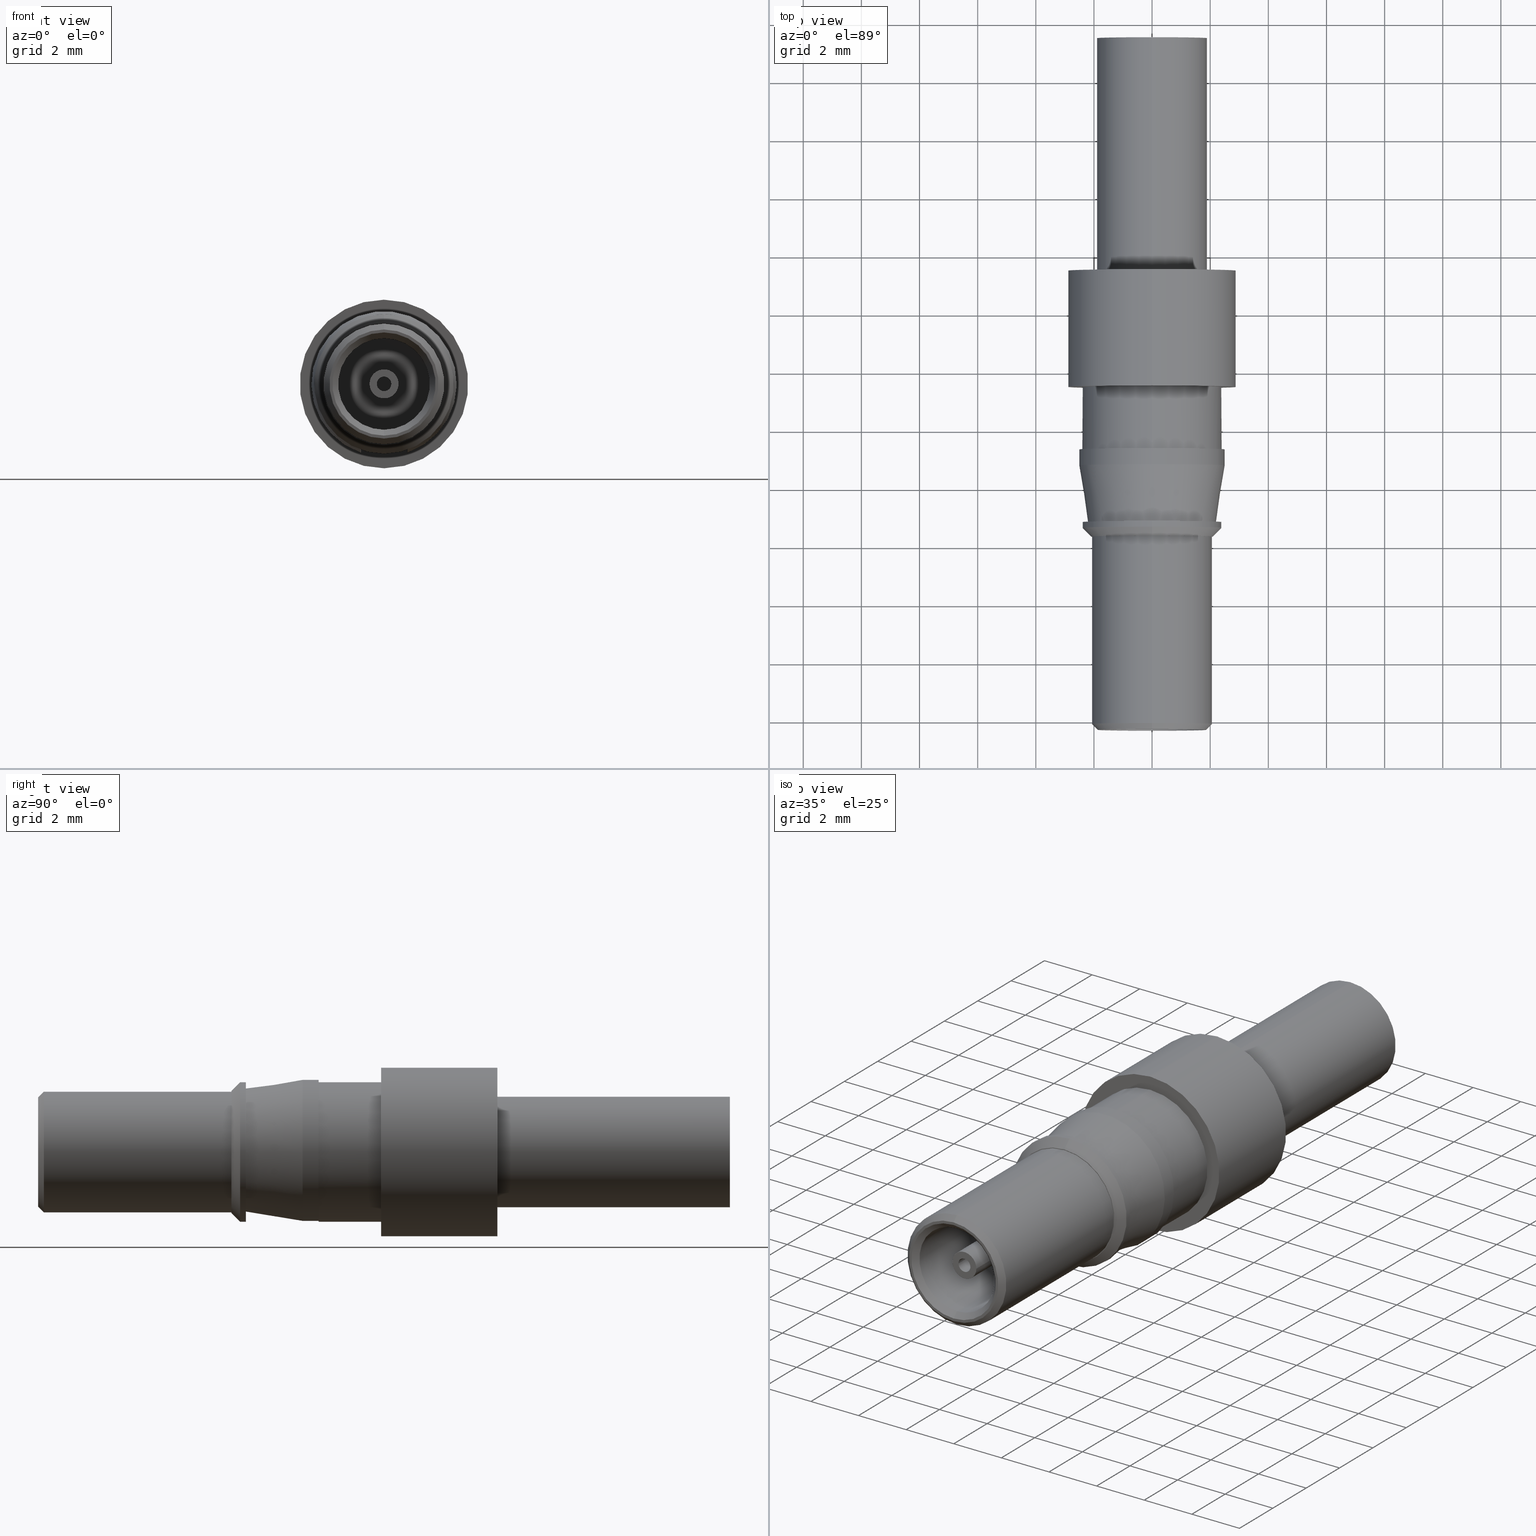
[diagram: canonical four-view strip — front | top / right | iso, engineering-drawing reading convention]
A machine part, canonical four-view strip (front | top / right | iso — engineering-drawing reading convention). The complete STEP part file that produces these views, byte-faithful:
ISO-10303-21;
HEADER;
FILE_DESCRIPTION(('Creo Elements/Direct Modeling STEP Export'),'2;1');
FILE_NAME(
'C:/Users/TECCAD~1/AppData/Local/Temp/0ln7uvk45n4be8q4320/0ln7uvk45n4be8
r4320','2016-11-14T 8:45:50',(''),(''),
'PTC Creo Elements/Direct Modeling STEP processor for AP214 (Solid Model
)',
'PTC Creo Elements/Direct Modeling 19.0E  27-Jun-2016 (C) Parametric Tec
hnology GmbH','');
FILE_SCHEMA(('AUTOMOTIVE_DESIGN { 1 0 10303 214 1 1 1 1 }'));
ENDSEC;
DATA;
#10=CARTESIAN_POINT('',(66.6468230000002,77.3795149999963,
-15.4499999999995));
#20=DIRECTION('',(0.,0.,-1.));
#30=DIRECTION('',(0.,-1.,0.));
#40=AXIS2_PLACEMENT_3D('',#10,#20,#30);
#50=CYLINDRICAL_SURFACE('',#40,2.4);
#60=CARTESIAN_POINT('',(66.6468230000002,74.9795149999963,
-15.4499999999995));
#70=DIRECTION('',(0.,0.,-1.));
#80=VECTOR('',#70,1.);
#90=LINE('',#60,#80);
#100=CARTESIAN_POINT('',(66.6468230000002,74.9795149999963,
-13.8999999999995));
#110=VERTEX_POINT('',#100);
#120=CARTESIAN_POINT('',(66.6468230000002,74.9795149999963,
-14.0999999999995));
#130=VERTEX_POINT('',#120);
#140=EDGE_CURVE('',#110,#130,#90,.T.);
#150=ORIENTED_EDGE('',*,*,#140,.T.);
#160=CARTESIAN_POINT('',(66.6468230000002,77.3795149999963,
-13.8999999999995));
#170=DIRECTION('',(0.,0.,-1.));
#180=DIRECTION('',(0.,-1.,0.));
#190=AXIS2_PLACEMENT_3D('',#160,#170,#180);
#200=CIRCLE('',#190,2.4);
#210=CARTESIAN_POINT('',(66.6468230000002,79.7795149999963,
-13.8999999999995));
#220=VERTEX_POINT('',#210);
#230=EDGE_CURVE('',#220,#110,#200,.T.);
#240=ORIENTED_EDGE('',*,*,#230,.T.);
#250=CARTESIAN_POINT('',(66.6468230000002,79.7795149999963,
-15.4499999999995));
#260=DIRECTION('',(0.,0.,-1.));
#270=VECTOR('',#260,1.);
#280=LINE('',#250,#270);
#290=CARTESIAN_POINT('',(66.6468230000002,79.7795149999963,
-14.0999999999995));
#300=VERTEX_POINT('',#290);
#310=EDGE_CURVE('',#220,#300,#280,.T.);
#320=ORIENTED_EDGE('',*,*,#310,.F.);
#330=CARTESIAN_POINT('',(66.6468230000002,77.3795149999963,
-14.0999999999995));
#340=DIRECTION('',(0.,0.,-1.));
#350=DIRECTION('',(0.,-1.,0.));
#360=AXIS2_PLACEMENT_3D('',#330,#340,#350);
#370=CIRCLE('',#360,2.4);
#380=EDGE_CURVE('',#300,#130,#370,.T.);
#390=ORIENTED_EDGE('',*,*,#380,.F.);
#400=EDGE_LOOP('',(#390,#320,#240,#150));
#410=FACE_OUTER_BOUND('',#400,.T.);
#420=ADVANCED_FACE('',(#410),#50,.T.);
#430=COLOUR_RGB('',0.77647066116333,0.650980412960052,0.223529428243637)
;
#440=FILL_AREA_STYLE_COLOUR('',#430);
#450=FILL_AREA_STYLE('',(#440));
#460=SURFACE_STYLE_FILL_AREA(#450);
#470=SURFACE_SIDE_STYLE('',(#460));
#480=SURFACE_STYLE_USAGE(.BOTH.,#470);
#490=PRESENTATION_STYLE_ASSIGNMENT((#480));
#500=CARTESIAN_POINT('',(66.6468230000002,77.3795149999963,
-5.24999999999949));
#510=DIRECTION('',(0.,0.,1.));
#520=DIRECTION('',(0.,1.,0.));
#530=AXIS2_PLACEMENT_3D('',#500,#510,#520);
#540=CYLINDRICAL_SURFACE('',#530,1.9);
#550=CARTESIAN_POINT('',(66.6468230000002,79.2795149999963,
-5.24999999999949));
#560=DIRECTION('',(0.,0.,1.));
#570=VECTOR('',#560,1.);
#580=LINE('',#550,#570);
#590=CARTESIAN_POINT('',(66.6468230000002,79.2795149999963,
-5.24999999999949));
#600=VERTEX_POINT('',#590);
#610=CARTESIAN_POINT('',(66.6468230000002,79.2795149999963,
2.75000000000051));
#620=VERTEX_POINT('',#610);
#630=EDGE_CURVE('',#600,#620,#580,.T.);
#640=ORIENTED_EDGE('',*,*,#630,.T.);
#650=CARTESIAN_POINT('',(66.6468230000002,77.3795149999963,
-5.24999999999949));
#660=DIRECTION('',(0.,0.,1.));
#670=DIRECTION('',(0.,1.,0.));
#680=AXIS2_PLACEMENT_3D('',#650,#660,#670);
#690=CIRCLE('',#680,1.9);
#700=CARTESIAN_POINT('',(66.6468230000002,75.4795149999963,
-5.24999999999949));
#710=VERTEX_POINT('',#700);
#720=EDGE_CURVE('',#710,#600,#690,.T.);
#730=ORIENTED_EDGE('',*,*,#720,.T.);
#740=CARTESIAN_POINT('',(66.6468230000002,75.4795149999963,
-5.24999999999949));
#750=DIRECTION('',(0.,0.,1.));
#760=VECTOR('',#750,1.);
#770=LINE('',#740,#760);
#780=CARTESIAN_POINT('',(66.6468230000002,75.4795149999963,
2.75000000000051));
#790=VERTEX_POINT('',#780);
#800=EDGE_CURVE('',#710,#790,#770,.T.);
#810=ORIENTED_EDGE('',*,*,#800,.F.);
#820=CARTESIAN_POINT('',(66.6468230000002,77.3795149999963,
2.75000000000051));
#830=DIRECTION('',(0.,0.,1.));
#840=DIRECTION('',(0.,1.,0.));
#850=AXIS2_PLACEMENT_3D('',#820,#830,#840);
#860=CIRCLE('',#850,1.9);
#870=EDGE_CURVE('',#790,#620,#860,.T.);
#880=ORIENTED_EDGE('',*,*,#870,.F.);
#890=EDGE_LOOP('',(#880,#810,#730,#640));
#900=FACE_OUTER_BOUND('',#890,.T.);
#910=ADVANCED_FACE('',(#900),#540,.T.);
#920=COLOUR_RGB('',0.77647066116333,0.650980412960052,0.223529428243637)
;
#930=FILL_AREA_STYLE_COLOUR('',#920);
#940=FILL_AREA_STYLE('',(#930));
#950=SURFACE_STYLE_FILL_AREA(#940);
#960=SURFACE_SIDE_STYLE('',(#950));
#970=SURFACE_STYLE_USAGE(.BOTH.,#960);
#980=PRESENTATION_STYLE_ASSIGNMENT((#970));
#990=CARTESIAN_POINT('',(66.6468230000002,77.3795149999963,
-0.249999999999488));
#1000=DIRECTION('',(0.,0.,1.));
#1010=DIRECTION('',(0.,1.,0.));
#1020=AXIS2_PLACEMENT_3D('',#990,#1000,#1010);
#1030=CYLINDRICAL_SURFACE('',#1020,1.3);
#1040=CARTESIAN_POINT('',(66.6468230000002,76.0795149999963,
-0.249999999999488));
#1050=DIRECTION('',(0.,0.,1.));
#1060=VECTOR('',#1050,1.);
#1070=LINE('',#1040,#1060);
#1080=CARTESIAN_POINT('',(66.6468230000002,76.0795149999963,
-5.24999999999949));
#1090=VERTEX_POINT('',#1080);
#1100=CARTESIAN_POINT('',(66.6468230000002,76.0795149999963,
-0.249999999999486));
#1110=VERTEX_POINT('',#1100);
#1120=EDGE_CURVE('',#1090,#1110,#1070,.T.);
#1130=ORIENTED_EDGE('',*,*,#1120,.F.);
#1140=CARTESIAN_POINT('',(66.6468230000002,77.3795149999963,
-0.249999999999486));
#1150=DIRECTION('',(0.,0.,1.));
#1160=DIRECTION('',(0.,1.,0.));
#1170=AXIS2_PLACEMENT_3D('',#1140,#1150,#1160);
#1180=CIRCLE('',#1170,1.3);
#1190=CARTESIAN_POINT('',(66.6468230000002,78.6795149999963,
-0.249999999999486));
#1200=VERTEX_POINT('',#1190);
#1210=EDGE_CURVE('',#1110,#1200,#1180,.T.);
#1220=ORIENTED_EDGE('',*,*,#1210,.F.);
#1230=CARTESIAN_POINT('',(66.6468230000002,78.6795149999963,
-0.249999999999488));
#1240=DIRECTION('',(0.,0.,1.));
#1250=VECTOR('',#1240,1.);
#1260=LINE('',#1230,#1250);
#1270=CARTESIAN_POINT('',(66.6468230000002,78.6795149999963,
-5.24999999999949));
#1280=VERTEX_POINT('',#1270);
#1290=EDGE_CURVE('',#1280,#1200,#1260,.T.);
#1300=ORIENTED_EDGE('',*,*,#1290,.T.);
#1310=CARTESIAN_POINT('',(66.6468230000002,77.3795149999963,
-5.24999999999949));
#1320=DIRECTION('',(0.,0.,1.));
#1330=DIRECTION('',(0.,1.,0.));
#1340=AXIS2_PLACEMENT_3D('',#1310,#1320,#1330);
#1350=CIRCLE('',#1340,1.3);
#1360=EDGE_CURVE('',#1090,#1280,#1350,.T.);
#1370=ORIENTED_EDGE('',*,*,#1360,.T.);
#1380=EDGE_LOOP('',(#1370,#1300,#1220,#1130));
#1390=FACE_OUTER_BOUND('',#1380,.T.);
#1400=ADVANCED_FACE('',(#1390),#1030,.T.);
#1410=COLOUR_RGB('',0.77647066116333,0.650980412960052,0.223529428243637
);
#1420=FILL_AREA_STYLE_COLOUR('',#1410);
#1430=FILL_AREA_STYLE('',(#1420));
#1440=SURFACE_STYLE_FILL_AREA(#1430);
#1450=SURFACE_SIDE_STYLE('',(#1440));
#1460=SURFACE_STYLE_USAGE(.BOTH.,#1450);
#1470=PRESENTATION_STYLE_ASSIGNMENT((#1460));
#1480=CARTESIAN_POINT('',(66.6468230000002,80.0795149999963,
-9.2499999999995));
#1490=DIRECTION('',(0.,-0.,1.));
#1500=DIRECTION('',(0.,1.,0.));
#1510=AXIS2_PLACEMENT_3D('',#1480,#1490,#1500);
#1520=PLANE('',#1510);
#1530=CARTESIAN_POINT('',(66.6468230000002,77.3795149999963,
-9.2499999999995));
#1540=DIRECTION('',(0.,0.,1.));
#1550=DIRECTION('',(1.,0.,0.));
#1560=AXIS2_PLACEMENT_3D('',#1530,#1540,#1550);
#1570=CIRCLE('',#1560,1.1);
#1580=CARTESIAN_POINT('',(67.7468230000002,77.3795149999963,
-9.2499999999995));
#1590=VERTEX_POINT('',#1580);
#1600=CARTESIAN_POINT('',(65.5468230000002,77.3795149999963,
-9.2499999999995));
#1610=VERTEX_POINT('',#1600);
#1620=EDGE_CURVE('',#1590,#1610,#1570,.T.);
#1630=ORIENTED_EDGE('',*,*,#1620,.T.);
#1640=EDGE_CURVE('',#1610,#1590,#1570,.T.);
#1650=ORIENTED_EDGE('',*,*,#1640,.T.);
#1660=EDGE_LOOP('',(#1650,#1630));
#1670=FACE_OUTER_BOUND('',#1660,.T.);
#1680=ADVANCED_FACE('',(#1670),#1520,.T.);
#1690=COLOUR_RGB('',0.77647066116333,0.650980412960052,0.223529428243637
);
#1700=FILL_AREA_STYLE_COLOUR('',#1690);
#1710=FILL_AREA_STYLE('',(#1700));
#1720=SURFACE_STYLE_FILL_AREA(#1710);
#1730=SURFACE_SIDE_STYLE('',(#1720));
#1740=SURFACE_STYLE_USAGE(.BOTH.,#1730);
#1750=PRESENTATION_STYLE_ASSIGNMENT((#1740));
#1760=CARTESIAN_POINT('',(66.6468230000002,79.2545149999963,
-5.24999999999949));
#1770=DIRECTION('',(-0.,-0.,-1.));
#1780=DIRECTION('',(0.,-1.,0.));
#1790=AXIS2_PLACEMENT_3D('',#1760,#1770,#1780);
#1800=PLANE('',#1790);
#1810=EDGE_CURVE('',#1280,#1090,#1350,.T.);
#1820=ORIENTED_EDGE('',*,*,#1810,.F.);
#1830=ORIENTED_EDGE('',*,*,#1360,.F.);
#1840=EDGE_LOOP('',(#1830,#1820));
#1850=FACE_BOUND('',#1840,.T.);
#1860=CARTESIAN_POINT('',(66.6468230000002,77.3795149999963,
-5.24999999999949));
#1870=DIRECTION('',(0.,0.,1.));
#1880=DIRECTION('',(0.,1.,0.));
#1890=AXIS2_PLACEMENT_3D('',#1860,#1870,#1880);
#1900=CIRCLE('',#1890,1.6);
#1910=CARTESIAN_POINT('',(66.6468230000002,78.9795149999963,
-5.24999999999949));
#1920=VERTEX_POINT('',#1910);
#1930=CARTESIAN_POINT('',(66.6468230000002,75.7795149999963,
-5.24999999999949));
#1940=VERTEX_POINT('',#1930);
#1950=EDGE_CURVE('',#1920,#1940,#1900,.T.);
#1960=ORIENTED_EDGE('',*,*,#1950,.T.);
#1970=EDGE_CURVE('',#1940,#1920,#1900,.T.);
#1980=ORIENTED_EDGE('',*,*,#1970,.T.);
#1990=EDGE_LOOP('',(#1980,#1960));
#2000=FACE_OUTER_BOUND('',#1990,.T.);
#2010=ADVANCED_FACE('',(#1850,#2000),#1800,.F.);
#2020=COLOUR_RGB('',0.77647066116333,0.650980412960052,0.223529428243637
);
#2030=FILL_AREA_STYLE_COLOUR('',#2020);
#2040=FILL_AREA_STYLE('',(#2030));
#2050=SURFACE_STYLE_FILL_AREA(#2040);
#2060=SURFACE_SIDE_STYLE('',(#2050));
#2070=SURFACE_STYLE_USAGE(.BOTH.,#2060);
#2080=PRESENTATION_STYLE_ASSIGNMENT((#2070));
#2090=CARTESIAN_POINT('',(66.6468230000002,79.1545149999963,
-21.0499999999995));
#2100=DIRECTION('',(0.,-0.,1.));
#2110=DIRECTION('',(0.,1.,0.));
#2120=AXIS2_PLACEMENT_3D('',#2090,#2100,#2110);
#2130=PLANE('',#2120);
#2140=CARTESIAN_POINT('',(66.6468230000002,77.3795149999963,
-21.0499999999995));
#2150=DIRECTION('',(0.,0.,1.));
#2160=DIRECTION('',(0.,1.,0.));
#2170=AXIS2_PLACEMENT_3D('',#2140,#2150,#2160);
#2180=CIRCLE('',#2170,1.775);
#2190=CARTESIAN_POINT('',(66.6468230000002,79.1545149999963,
-21.0499999999995));
#2200=VERTEX_POINT('',#2190);
#2210=CARTESIAN_POINT('',(66.6468230000002,75.6045149999963,
-21.0499999999995));
#2220=VERTEX_POINT('',#2210);
#2230=EDGE_CURVE('',#2200,#2220,#2180,.T.);
#2240=ORIENTED_EDGE('',*,*,#2230,.T.);
#2250=EDGE_CURVE('',#2220,#2200,#2180,.T.);
#2260=ORIENTED_EDGE('',*,*,#2250,.T.);
#2270=EDGE_LOOP('',(#2260,#2240));
#2280=FACE_BOUND('',#2270,.T.);
#2290=CARTESIAN_POINT('',(66.6468230000002,77.3795149999963,
-21.0499999999995));
#2300=DIRECTION('',(0.,0.,-1.));
#2310=DIRECTION('',(0.,-1.,0.));
#2320=AXIS2_PLACEMENT_3D('',#2290,#2300,#2310);
#2330=CIRCLE('',#2320,1.875);
#2340=CARTESIAN_POINT('',(66.6468230000002,79.2545149999963,
-21.0499999999995));
#2350=VERTEX_POINT('',#2340);
#2360=CARTESIAN_POINT('',(66.6468230000002,75.5045149999963,
-21.0499999999995));
#2370=VERTEX_POINT('',#2360);
#2380=EDGE_CURVE('',#2350,#2370,#2330,.T.);
#2390=ORIENTED_EDGE('',*,*,#2380,.T.);
#2400=EDGE_CURVE('',#2370,#2350,#2330,.T.);
#2410=ORIENTED_EDGE('',*,*,#2400,.T.);
#2420=EDGE_LOOP('',(#2410,#2390));
#2430=FACE_OUTER_BOUND('',#2420,.T.);
#2440=ADVANCED_FACE('',(#2280,#2430),#2130,.F.);
#2450=COLOUR_RGB('',0.77647066116333,0.650980412960052,0.223529428243637
);
#2460=FILL_AREA_STYLE_COLOUR('',#2450);
#2470=FILL_AREA_STYLE('',(#2460));
#2480=SURFACE_STYLE_FILL_AREA(#2470);
#2490=SURFACE_SIDE_STYLE('',(#2480));
#2500=SURFACE_STYLE_USAGE(.BOTH.,#2490);
#2510=PRESENTATION_STYLE_ASSIGNMENT((#2500));
#2520=CARTESIAN_POINT('',(66.6468230000002,77.3795149999963,
-8.12499999999949));
#2530=DIRECTION('',(0.,0.,1.));
#2540=DIRECTION('',(0.,1.,0.));
#2550=AXIS2_PLACEMENT_3D('',#2520,#2530,#2540);
#2560=CYLINDRICAL_SURFACE('',#2550,1.575);
#2570=CARTESIAN_POINT('',(66.6468230000002,75.8045149999963,
-8.12499999999949));
#2580=DIRECTION('',(0.,0.,1.));
#2590=VECTOR('',#2580,1.);
#2600=LINE('',#2570,#2590);
#2610=CARTESIAN_POINT('',(66.6468230000002,75.8045149999963,
-20.8499999999995));
#2620=VERTEX_POINT('',#2610);
#2630=CARTESIAN_POINT('',(66.6468230000002,75.8045149999963,
-14.6999999999995));
#2640=VERTEX_POINT('',#2630);
#2650=EDGE_CURVE('',#2620,#2640,#2600,.T.);
#2660=ORIENTED_EDGE('',*,*,#2650,.T.);
#2670=CARTESIAN_POINT('',(66.6468230000002,77.3795149999963,
-20.8499999999995));
#2680=DIRECTION('',(0.,0.,1.));
#2690=DIRECTION('',(0.,1.,0.));
#2700=AXIS2_PLACEMENT_3D('',#2670,#2680,#2690);
#2710=CIRCLE('',#2700,1.575);
#2720=CARTESIAN_POINT('',(66.6468230000002,78.9545149999963,
-20.8499999999995));
#2730=VERTEX_POINT('',#2720);
#2740=EDGE_CURVE('',#2620,#2730,#2710,.T.);
#2750=ORIENTED_EDGE('',*,*,#2740,.F.);
#2760=CARTESIAN_POINT('',(66.6468230000002,78.9545149999963,
-8.12499999999949));
#2770=DIRECTION('',(0.,0.,1.));
#2780=VECTOR('',#2770,1.);
#2790=LINE('',#2760,#2780);
#2800=CARTESIAN_POINT('',(66.6468230000002,78.9545149999963,
-14.6999999999995));
#2810=VERTEX_POINT('',#2800);
#2820=EDGE_CURVE('',#2730,#2810,#2790,.T.);
#2830=ORIENTED_EDGE('',*,*,#2820,.F.);
#2840=CARTESIAN_POINT('',(66.6468230000002,77.3795149999963,
-14.6999999999995));
#2850=DIRECTION('',(0.,0.,1.));
#2860=DIRECTION('',(0.,1.,0.));
#2870=AXIS2_PLACEMENT_3D('',#2840,#2850,#2860);
#2880=CIRCLE('',#2870,1.575);
#2890=EDGE_CURVE('',#2640,#2810,#2880,.T.);
#2900=ORIENTED_EDGE('',*,*,#2890,.T.);
#2910=EDGE_LOOP('',(#2900,#2830,#2750,#2660));
#2920=FACE_OUTER_BOUND('',#2910,.T.);
#2930=ADVANCED_FACE('',(#2920),#2560,.F.);
#2940=COLOUR_RGB('',0.77647066116333,0.650980412960052,0.223529428243637
);
#2950=FILL_AREA_STYLE_COLOUR('',#2940);
#2960=FILL_AREA_STYLE('',(#2950));
#2970=SURFACE_STYLE_FILL_AREA(#2960);
#2980=SURFACE_SIDE_STYLE('',(#2970));
#2990=SURFACE_STYLE_USAGE(.BOTH.,#2980);
#3000=PRESENTATION_STYLE_ASSIGNMENT((#2990));
#3010=CARTESIAN_POINT('',(66.6468230000002,79.2545149999963,
-5.24999999999949));
#3020=DIRECTION('',(-0.,-0.,-1.));
#3030=DIRECTION('',(0.,-1.,0.));
#3040=AXIS2_PLACEMENT_3D('',#3010,#3020,#3030);
#3050=PLANE('',#3040);
#3060=EDGE_CURVE('',#600,#710,#690,.T.);
#3070=ORIENTED_EDGE('',*,*,#3060,.F.);
#3080=ORIENTED_EDGE('',*,*,#720,.F.);
#3090=EDGE_LOOP('',(#3080,#3070));
#3100=FACE_BOUND('',#3090,.T.);
#3110=CARTESIAN_POINT('',(66.6468230000002,77.3795149999963,
-5.24999999999949));
#3120=DIRECTION('',(0.,0.,-1.));
#3130=DIRECTION('',(0.,-1.,0.));
#3140=AXIS2_PLACEMENT_3D('',#3110,#3120,#3130);
#3150=CIRCLE('',#3140,2.9);
#3160=CARTESIAN_POINT('',(66.6468230000002,74.4795149999963,
-5.24999999999949));
#3170=VERTEX_POINT('',#3160);
#3180=CARTESIAN_POINT('',(66.6468230000002,80.2795149999963,
-5.24999999999949));
#3190=VERTEX_POINT('',#3180);
#3200=EDGE_CURVE('',#3170,#3190,#3150,.T.);
#3210=ORIENTED_EDGE('',*,*,#3200,.F.);
#3220=EDGE_CURVE('',#3190,#3170,#3150,.T.);
#3230=ORIENTED_EDGE('',*,*,#3220,.F.);
#3240=EDGE_LOOP('',(#3230,#3210));
#3250=FACE_OUTER_BOUND('',#3240,.T.);
#3260=ADVANCED_FACE('',(#3100,#3250),#3050,.F.);
#3270=COLOUR_RGB('',0.77647066116333,0.650980412960052,0.223529428243637
);
#3280=FILL_AREA_STYLE_COLOUR('',#3270);
#3290=FILL_AREA_STYLE('',(#3280));
#3300=SURFACE_STYLE_FILL_AREA(#3290);
#3310=SURFACE_SIDE_STYLE('',(#3300));
#3320=SURFACE_STYLE_USAGE(.BOTH.,#3310);
#3330=PRESENTATION_STYLE_ASSIGNMENT((#3320));
#3340=CARTESIAN_POINT('',(67.4468230000002,75.1167733001994,
-11.3999999999995));
#3350=DIRECTION('',(1.,0.,0.));
#3360=DIRECTION('',(0.,-1.,0.));
#3370=AXIS2_PLACEMENT_3D('',#3340,#3350,#3360);
#3380=PLANE('',#3370);
#3390=CARTESIAN_POINT('',(67.4468230000002,72.082796,-11.3999999999995))
;
#3400=DIRECTION('',(0.,1.,0.));
#3410=VECTOR('',#3400,1.);
#3420=LINE('',#3390,#3410);
#3430=CARTESIAN_POINT('',(67.4468230000002,75.1167733001994,
-11.3999999999995));
#3440=VERTEX_POINT('',#3430);
#3450=CARTESIAN_POINT('',(67.4468230000002,75.823076758369,
-11.3999999999995));
#3460=VERTEX_POINT('',#3450);
#3470=EDGE_CURVE('',#3440,#3460,#3420,.T.);
#3480=ORIENTED_EDGE('',*,*,#3470,.T.);
#3490=CARTESIAN_POINT('',(67.4468230000002,77.3795149999963,
-11.3999999999995));
#3500=DIRECTION('',(0.,-1.,0.));
#3510=VECTOR('',#3500,1.);
#3520=LINE('',#3490,#3510);
#3530=CARTESIAN_POINT('',(67.4468230000002,75.0109711435309,
-11.3999999999995));
#3540=VERTEX_POINT('',#3530);
#3550=EDGE_CURVE('',#3440,#3540,#3520,.T.);
#3560=ORIENTED_EDGE('',*,*,#3550,.F.);
#3570=CARTESIAN_POINT('',(67.4468230000002,75.0109711435309,
-11.6749999999995));
#3580=DIRECTION('',(0.,0.,-1.));
#3590=VECTOR('',#3580,1.);
#3600=LINE('',#3570,#3590);
#3610=CARTESIAN_POINT('',(67.4468230000002,75.0109711435309,
-11.9499999999995));
#3620=VERTEX_POINT('',#3610);
#3630=EDGE_CURVE('',#3540,#3620,#3600,.T.);
#3640=ORIENTED_EDGE('',*,*,#3630,.F.);
#3650=CARTESIAN_POINT('',(66.6468230000002,77.3795149999963,
-11.9499999999995));
#3660=DIRECTION('',(0.,0.,1.));
#3670=DIRECTION('',(0.,1.,0.));
#3680=AXIS2_PLACEMENT_3D('',#3650,#3660,#3670);
#3690=CONICAL_SURFACE('',#3680,2.5,0.152649328395269);
#3700=CARTESIAN_POINT('',(67.4468230000002,75.3301248468044,
-13.8999999999995));
#3710=CARTESIAN_POINT('',(67.4468230000002,75.3032939086194,
-13.7375382302894));
#3720=CARTESIAN_POINT('',(67.4468230000002,75.2765306829493,
-13.5750651959543));
#3730=CARTESIAN_POINT('',(67.4468230000002,75.249827836323,
-13.4125822643499));
#3740=CARTESIAN_POINT('',(67.4468230000002,75.2231249897751,
-13.2500993332219));
#3750=CARTESIAN_POINT('',(67.4468229999958,75.1964825360749,
-13.0876065019471));
#3760=CARTESIAN_POINT('',(67.4468229999958,75.1698941970121,
-12.9251049782478));
#3770=CARTESIAN_POINT('',(67.4468229999958,75.1433058580069,
-12.7626034549006));
#3780=CARTESIAN_POINT('',(67.4468229999999,75.1167716445621,
-12.6000932370801));
#3790=CARTESIAN_POINT('',(67.4468229999999,75.0902861474571,
-12.4375754011268));
#3800=CARTESIAN_POINT('',(67.4468229999999,75.063800650379,
-12.2750575653379));
#3810=CARTESIAN_POINT('',(67.4468230000002,75.0373638784052,
-12.1125321101083));
#3820=CARTESIAN_POINT('',(67.4468230000002,75.0109711435309,
-11.9499999999995));
#3830=B_SPLINE_CURVE_WITH_KNOTS('',3,(#3700,#3710,#3720,#3730,#3740,
#3750,#3760,#3770,#3780,#3790,#3800,#3810,#3820),.UNSPECIFIED.,.F.,.F.,(
4,3,3,3,4),(0.,0.493987521654337,0.987974871094755,1.48196124586762,
1.97594570755846),.UNSPECIFIED.);
#3840=SURFACE_CURVE('',#3830,(#3690,#3380),.CURVE_3D.);
#3850=CARTESIAN_POINT('',(67.4468230000002,75.3301248468044,
-13.8999999999995));
#3860=VERTEX_POINT('',#3850);
#3870=EDGE_CURVE('',#3860,#3620,#3840,.T.);
#3880=ORIENTED_EDGE('',*,*,#3870,.T.);
#3890=CARTESIAN_POINT('',(67.4468230000002,0.,-13.8999999999995));
#3900=DIRECTION('',(0.,1.,0.));
#3910=VECTOR('',#3900,1.);
#3920=LINE('',#3890,#3910);
#3930=CARTESIAN_POINT('',(67.4468230000002,75.823076758369,
-13.8999999999995));
#3940=VERTEX_POINT('',#3930);
#3950=EDGE_CURVE('',#3860,#3940,#3920,.T.);
#3960=ORIENTED_EDGE('',*,*,#3950,.F.);
#3970=CARTESIAN_POINT('',(67.4468230000002,75.823076758369,
-11.3999999999995));
#3980=DIRECTION('',(0.,0.,-1.));
#3990=VECTOR('',#3980,1.);
#4000=LINE('',#3970,#3990);
#4010=EDGE_CURVE('',#3460,#3940,#4000,.T.);
#4020=ORIENTED_EDGE('',*,*,#4010,.T.);
#4030=EDGE_LOOP('',(#4020,#3960,#3880,#3640,#3560,#3480));
#4040=FACE_OUTER_BOUND('',#4030,.T.);
#4050=ADVANCED_FACE('',(#4040),#3380,.F.);
#4060=COLOUR_RGB('',0.686274528503418,0.686274528503418,
0.686274528503418);
#4070=FILL_AREA_STYLE_COLOUR('',#4060);
#4080=FILL_AREA_STYLE('',(#4070));
#4090=SURFACE_STYLE_FILL_AREA(#4080);
#4100=SURFACE_SIDE_STYLE('',(#4090));
#4110=SURFACE_STYLE_USAGE(.BOTH.,#4100);
#4120=PRESENTATION_STYLE_ASSIGNMENT((#4110));
#4130=CARTESIAN_POINT('',(66.6468230000002,77.3795149999963,
-2.07500099999949));
#4140=DIRECTION('',(0.,0.,-1.));
#4150=DIRECTION('',(0.,-1.,0.));
#4160=AXIS2_PLACEMENT_3D('',#4130,#4140,#4150);
#4170=CYLINDRICAL_SURFACE('',#4160,2.9);
#4180=CARTESIAN_POINT('',(66.6468230000002,74.4795149999963,
-2.07500099999949));
#4190=DIRECTION('',(0.,0.,-1.));
#4200=VECTOR('',#4190,1.);
#4210=LINE('',#4180,#4200);
#4220=CARTESIAN_POINT('',(66.6468230000002,74.4795149999963,
-9.2499999999995));
#4230=VERTEX_POINT('',#4220);
#4240=EDGE_CURVE('',#3170,#4230,#4210,.T.);
#4250=ORIENTED_EDGE('',*,*,#4240,.T.);
#4260=ORIENTED_EDGE('',*,*,#3220,.T.);
#4270=CARTESIAN_POINT('',(66.6468230000002,80.2795149999963,
-2.07500099999949));
#4280=DIRECTION('',(0.,0.,-1.));
#4290=VECTOR('',#4280,1.);
#4300=LINE('',#4270,#4290);
#4310=CARTESIAN_POINT('',(66.6468230000002,80.2795149999963,
-9.2499999999995));
#4320=VERTEX_POINT('',#4310);
#4330=EDGE_CURVE('',#3190,#4320,#4300,.T.);
#4340=ORIENTED_EDGE('',*,*,#4330,.F.);
#4350=CARTESIAN_POINT('',(66.6468230000002,77.3795149999963,
-9.2499999999995));
#4360=DIRECTION('',(0.,0.,-1.));
#4370=DIRECTION('',(0.,-1.,0.));
#4380=AXIS2_PLACEMENT_3D('',#4350,#4360,#4370);
#4390=CIRCLE('',#4380,2.9);
#4400=EDGE_CURVE('',#4320,#4230,#4390,.T.);
#4410=ORIENTED_EDGE('',*,*,#4400,.F.);
#4420=EDGE_LOOP('',(#4410,#4340,#4260,#4250));
#4430=FACE_OUTER_BOUND('',#4420,.T.);
#4440=ADVANCED_FACE('',(#4430),#4170,.T.);
#4450=COLOUR_RGB('',0.77647066116333,0.650980412960052,0.223529428243637
);
#4460=FILL_AREA_STYLE_COLOUR('',#4450);
#4470=FILL_AREA_STYLE('',(#4460));
#4480=SURFACE_STYLE_FILL_AREA(#4470);
#4490=SURFACE_SIDE_STYLE('',(#4480));
#4500=SURFACE_STYLE_USAGE(.BOTH.,#4490);
#4510=PRESENTATION_STYLE_ASSIGNMENT((#4500));
#4520=CARTESIAN_POINT('',(66.6468230000002,75.6045149999963,
-14.3999999999995));
#4530=DIRECTION('',(0.,0.,-1.));
#4540=DIRECTION('',(0.,1.,0.));
#4550=AXIS2_PLACEMENT_3D('',#4520,#4530,#4540);
#4560=PLANE('',#4550);
#4570=CARTESIAN_POINT('',(66.6468230000002,77.3795149999963,
-14.3999999999995));
#4580=DIRECTION('',(0.,0.,-1.));
#4590=DIRECTION('',(0.,-1.,0.));
#4600=AXIS2_PLACEMENT_3D('',#4570,#4580,#4590);
#4610=CIRCLE('',#4600,2.1);
#4620=CARTESIAN_POINT('',(66.6468230000002,75.2795149999963,
-14.3999999999995));
#4630=VERTEX_POINT('',#4620);
#4640=CARTESIAN_POINT('',(66.6468230000002,79.4795149999963,
-14.3999999999995));
#4650=VERTEX_POINT('',#4640);
#4660=EDGE_CURVE('',#4630,#4650,#4610,.T.);
#4670=ORIENTED_EDGE('',*,*,#4660,.T.);
#4680=EDGE_CURVE('',#4650,#4630,#4610,.T.);
#4690=ORIENTED_EDGE('',*,*,#4680,.T.);
#4700=EDGE_LOOP('',(#4690,#4670));
#4710=FACE_OUTER_BOUND('',#4700,.T.);
#4720=CARTESIAN_POINT('',(66.6468230000002,77.3795149999963,
-14.3999999999995));
#4730=DIRECTION('',(0.,0.,-1.));
#4740=DIRECTION('',(0.,1.,0.));
#4750=AXIS2_PLACEMENT_3D('',#4720,#4730,#4740);
#4760=CIRCLE('',#4750,2.075);
#4770=CARTESIAN_POINT('',(66.6468230000002,79.4545149999963,
-14.3999999999995));
#4780=VERTEX_POINT('',#4770);
#4790=CARTESIAN_POINT('',(66.6468230000002,75.3045149999963,
-14.3999999999995));
#4800=VERTEX_POINT('',#4790);
#4810=EDGE_CURVE('',#4780,#4800,#4760,.T.);
#4820=ORIENTED_EDGE('',*,*,#4810,.F.);
#4830=EDGE_CURVE('',#4800,#4780,#4760,.T.);
#4840=ORIENTED_EDGE('',*,*,#4830,.F.);
#4850=EDGE_LOOP('',(#4840,#4820));
#4860=FACE_BOUND('',#4850,.T.);
#4870=ADVANCED_FACE('',(#4710,#4860),#4560,.T.);
#4880=COLOUR_RGB('',0.77647066116333,0.650980412960052,0.223529428243637
);
#4890=FILL_AREA_STYLE_COLOUR('',#4880);
#4900=FILL_AREA_STYLE('',(#4890));
#4910=SURFACE_STYLE_FILL_AREA(#4900);
#4920=SURFACE_SIDE_STYLE('',(#4910));
#4930=SURFACE_STYLE_USAGE(.BOTH.,#4920);
#4940=PRESENTATION_STYLE_ASSIGNMENT((#4930));
#4950=CARTESIAN_POINT('',(64.9484426062667,79.0892753228973,
-11.3999999999995));
#4960=DIRECTION('',(0.,0.,1.));
#4970=DIRECTION('',(1.,0.,0.));
#4980=AXIS2_PLACEMENT_3D('',#4950,#4960,#4970);
#4990=PLANE('',#4980);
#5000=CARTESIAN_POINT('',(66.6468230000002,77.3795149999963,
-11.3999999999995));
#5010=DIRECTION('',(0.,0.,-1.));
#5020=DIRECTION('',(0.,-1.,0.));
#5030=AXIS2_PLACEMENT_3D('',#5000,#5010,#5020);
#5040=CIRCLE('',#5030,2.39999999999998);
#5050=CARTESIAN_POINT('',(66.6468230000002,74.9795149999964,
-11.3999999999995));
#5060=VERTEX_POINT('',#5050);
#5070=EDGE_CURVE('',#3440,#5060,#5040,.T.);
#5080=ORIENTED_EDGE('',*,*,#5070,.T.);
#5090=ORIENTED_EDGE('',*,*,#3470,.F.);
#5100=CARTESIAN_POINT('',(66.6468230000002,77.3795149999963,
-11.3999999999995));
#5110=DIRECTION('',(0.,0.,1.));
#5120=DIRECTION('',(1.,0.,0.));
#5130=AXIS2_PLACEMENT_3D('',#5100,#5110,#5120);
#5140=CIRCLE('',#5130,1.75);
#5150=CARTESIAN_POINT('',(65.8468230000002,75.823076758369,
-11.3999999999995));
#5160=VERTEX_POINT('',#5150);
#5170=EDGE_CURVE('',#5160,#3460,#5140,.T.);
#5180=ORIENTED_EDGE('',*,*,#5170,.T.);
#5190=CARTESIAN_POINT('',(65.8468230000002,76.91194,-11.3999999999995));
#5200=DIRECTION('',(0.,-1.,0.));
#5210=VECTOR('',#5200,1.);
#5220=LINE('',#5190,#5210);
#5230=CARTESIAN_POINT('',(65.8468230000002,75.1167733001994,
-11.3999999999995));
#5240=VERTEX_POINT('',#5230);
#5250=EDGE_CURVE('',#5160,#5240,#5220,.T.);
#5260=ORIENTED_EDGE('',*,*,#5250,.F.);
#5270=EDGE_CURVE('',#5060,#5240,#5040,.T.);
#5280=ORIENTED_EDGE('',*,*,#5270,.T.);
#5290=EDGE_LOOP('',(#5280,#5260,#5180,#5090,#5080));
#5300=FACE_OUTER_BOUND('',#5290,.T.);
#5310=ADVANCED_FACE('',(#5300),#4990,.F.);
#5320=COLOUR_RGB('',0.77647066116333,0.650980412960052,0.223529428243637
);
#5330=FILL_AREA_STYLE_COLOUR('',#5320);
#5340=FILL_AREA_STYLE('',(#5330));
#5350=SURFACE_STYLE_FILL_AREA(#5340);
#5360=SURFACE_SIDE_STYLE('',(#5350));
#5370=SURFACE_STYLE_USAGE(.BOTH.,#5360);
#5380=PRESENTATION_STYLE_ASSIGNMENT((#5370));
#5390=CARTESIAN_POINT('',(66.6468230000002,77.3795149999963,
-21.1999999999995));
#5400=DIRECTION('',(0.,0.,-1.));
#5410=DIRECTION('',(0.,1.,0.));
#5420=AXIS2_PLACEMENT_3D('',#5390,#5400,#5410);
#5430=CYLINDRICAL_SURFACE('',#5420,2.075);
#5440=CARTESIAN_POINT('',(66.6468230000002,79.4545149999963,
-21.1999999999995));
#5450=DIRECTION('',(0.,0.,-1.));
#5460=VECTOR('',#5450,1.);
#5470=LINE('',#5440,#5460);
#5480=CARTESIAN_POINT('',(66.6468230000002,79.4545149999963,
-20.8499999999995));
#5490=VERTEX_POINT('',#5480);
#5500=EDGE_CURVE('',#4780,#5490,#5470,.T.);
#5510=ORIENTED_EDGE('',*,*,#5500,.T.);
#5520=ORIENTED_EDGE('',*,*,#4830,.T.);
#5530=CARTESIAN_POINT('',(66.6468230000002,75.3045149999963,
-21.1999999999995));
#5540=DIRECTION('',(0.,0.,-1.));
#5550=VECTOR('',#5540,1.);
#5560=LINE('',#5530,#5550);
#5570=CARTESIAN_POINT('',(66.6468230000002,75.3045149999963,
-20.8499999999995));
#5580=VERTEX_POINT('',#5570);
#5590=EDGE_CURVE('',#4800,#5580,#5560,.T.);
#5600=ORIENTED_EDGE('',*,*,#5590,.F.);
#5610=CARTESIAN_POINT('',(66.6468230000002,77.3795149999963,
-20.8499999999995));
#5620=DIRECTION('',(0.,0.,-1.));
#5630=DIRECTION('',(0.,-1.,0.));
#5640=AXIS2_PLACEMENT_3D('',#5610,#5620,#5630);
#5650=CIRCLE('',#5640,2.075);
#5660=EDGE_CURVE('',#5580,#5490,#5650,.T.);
#5670=ORIENTED_EDGE('',*,*,#5660,.F.);
#5680=EDGE_LOOP('',(#5670,#5600,#5520,#5510));
#5690=FACE_OUTER_BOUND('',#5680,.T.);
#5700=ADVANCED_FACE('',(#5690),#5430,.T.);
#5710=COLOUR_RGB('',0.77647066116333,0.650980412960052,0.223529428243637
);
#5720=FILL_AREA_STYLE_COLOUR('',#5710);
#5730=FILL_AREA_STYLE('',(#5720));
#5740=SURFACE_STYLE_FILL_AREA(#5730);
#5750=SURFACE_SIDE_STYLE('',(#5740));
#5760=SURFACE_STYLE_USAGE(.BOTH.,#5750);
#5770=PRESENTATION_STYLE_ASSIGNMENT((#5760));
#5780=CARTESIAN_POINT('',(67.5515808138022,78.4717248592035,
-0.249999999999486));
#5790=DIRECTION('',(0.,0.,1.));
#5800=DIRECTION('',(1.,0.,0.));
#5810=AXIS2_PLACEMENT_3D('',#5780,#5790,#5800);
#5820=PLANE('',#5810);
#5830=CARTESIAN_POINT('',(66.6468230000002,77.3795149999963,
-0.249999999999486));
#5840=DIRECTION('',(0.,0.,1.));
#5850=DIRECTION('',(1.,0.,0.));
#5860=AXIS2_PLACEMENT_3D('',#5830,#5840,#5850);
#5870=CIRCLE('',#5860,1.1);
#5880=CARTESIAN_POINT('',(67.7468230000002,77.3795149999963,
-0.249999999999486));
#5890=VERTEX_POINT('',#5880);
#5900=CARTESIAN_POINT('',(65.5468230000002,77.3795149999963,
-0.249999999999486));
#5910=VERTEX_POINT('',#5900);
#5920=EDGE_CURVE('',#5890,#5910,#5870,.T.);
#5930=ORIENTED_EDGE('',*,*,#5920,.F.);
#5940=EDGE_CURVE('',#5910,#5890,#5870,.T.);
#5950=ORIENTED_EDGE('',*,*,#5940,.F.);
#5960=EDGE_LOOP('',(#5950,#5930));
#5970=FACE_BOUND('',#5960,.T.);
#5980=EDGE_CURVE('',#1200,#1110,#1180,.T.);
#5990=ORIENTED_EDGE('',*,*,#5980,.T.);
#6000=ORIENTED_EDGE('',*,*,#1210,.T.);
#6010=EDGE_LOOP('',(#6000,#5990));
#6020=FACE_OUTER_BOUND('',#6010,.T.);
#6030=ADVANCED_FACE('',(#5970,#6020),#5820,.T.);
#6040=COLOUR_RGB('',0.77647066116333,0.650980412960052,0.223529428243637
);
#6050=FILL_AREA_STYLE_COLOUR('',#6040);
#6060=FILL_AREA_STYLE('',(#6050));
#6070=SURFACE_STYLE_FILL_AREA(#6060);
#6080=SURFACE_SIDE_STYLE('',(#6070));
#6090=SURFACE_STYLE_USAGE(.BOTH.,#6080);
#6100=PRESENTATION_STYLE_ASSIGNMENT((#6090));
#6110=CARTESIAN_POINT('',(66.6468230000002,80.0795149999963,
-9.2499999999995));
#6120=DIRECTION('',(0.,-0.,1.));
#6130=DIRECTION('',(0.,1.,0.));
#6140=AXIS2_PLACEMENT_3D('',#6110,#6120,#6130);
#6150=PLANE('',#6140);
#6160=CARTESIAN_POINT('',(66.6468230000002,77.3795149999963,
-9.2499999999995));
#6170=DIRECTION('',(0.,0.,-1.));
#6180=DIRECTION('',(0.,-1.,0.));
#6190=AXIS2_PLACEMENT_3D('',#6160,#6170,#6180);
#6200=CIRCLE('',#6190,2.39999999999998);
#6210=CARTESIAN_POINT('',(66.6468230000002,74.9795149999964,
-9.2499999999995));
#6220=VERTEX_POINT('',#6210);
#6230=CARTESIAN_POINT('',(66.6468230000002,79.7795149999963,
-9.2499999999995));
#6240=VERTEX_POINT('',#6230);
#6250=EDGE_CURVE('',#6220,#6240,#6200,.T.);
#6260=ORIENTED_EDGE('',*,*,#6250,.F.);
#6270=EDGE_CURVE('',#6240,#6220,#6200,.T.);
#6280=ORIENTED_EDGE('',*,*,#6270,.F.);
#6290=EDGE_LOOP('',(#6280,#6260));
#6300=FACE_BOUND('',#6290,.T.);
#6310=EDGE_CURVE('',#4230,#4320,#4390,.T.);
#6320=ORIENTED_EDGE('',*,*,#6310,.T.);
#6330=ORIENTED_EDGE('',*,*,#4400,.T.);
#6340=EDGE_LOOP('',(#6330,#6320));
#6350=FACE_OUTER_BOUND('',#6340,.T.);
#6360=ADVANCED_FACE('',(#6300,#6350),#6150,.F.);
#6370=COLOUR_RGB('',0.77647066116333,0.650980412960052,0.223529428243637
);
#6380=FILL_AREA_STYLE_COLOUR('',#6370);
#6390=FILL_AREA_STYLE('',(#6380));
#6400=SURFACE_STYLE_FILL_AREA(#6390);
#6410=SURFACE_SIDE_STYLE('',(#6400));
#6420=SURFACE_STYLE_USAGE(.BOTH.,#6410);
#6430=PRESENTATION_STYLE_ASSIGNMENT((#6420));
#6440=CARTESIAN_POINT('',(66.6468230000002,77.3795149999963,
-10.2499999999995));
#6450=DIRECTION('',(0.,0.,-1.));
#6460=DIRECTION('',(0.,-1.,0.));
#6470=AXIS2_PLACEMENT_3D('',#6440,#6450,#6460);
#6480=CYLINDRICAL_SURFACE('',#6470,2.39999999999998);
#6490=CARTESIAN_POINT('',(66.6468230000002,79.7795149999963,
-10.2499999999995));
#6500=DIRECTION('',(0.,0.,-1.));
#6510=VECTOR('',#6500,1.);
#6520=LINE('',#6490,#6510);
#6530=CARTESIAN_POINT('',(66.6468230000002,79.7795149999963,
-11.3999999999995));
#6540=VERTEX_POINT('',#6530);
#6550=EDGE_CURVE('',#6240,#6540,#6520,.T.);
#6560=ORIENTED_EDGE('',*,*,#6550,.T.);
#6570=ORIENTED_EDGE('',*,*,#6250,.T.);
#6580=CARTESIAN_POINT('',(66.6468230000002,74.9795149999964,
-10.2499999999995));
#6590=DIRECTION('',(0.,0.,-1.));
#6600=VECTOR('',#6590,1.);
#6610=LINE('',#6580,#6600);
#6620=EDGE_CURVE('',#6220,#5060,#6610,.T.);
#6630=ORIENTED_EDGE('',*,*,#6620,.F.);
#6640=ORIENTED_EDGE('',*,*,#5270,.F.);
#6650=CARTESIAN_POINT('',(66.6468230000002,77.3795149999963,
-11.3999999999995));
#6660=DIRECTION('',(0.,0.,1.));
#6670=DIRECTION('',(0.,1.,0.));
#6680=AXIS2_PLACEMENT_3D('',#6650,#6660,#6670);
#6690=CIRCLE('',#6680,2.39999999999998);
#6700=EDGE_CURVE('',#6540,#5240,#6690,.T.);
#6710=ORIENTED_EDGE('',*,*,#6700,.T.);
#6720=EDGE_LOOP('',(#6710,#6640,#6630,#6570,#6560));
#6730=FACE_OUTER_BOUND('',#6720,.T.);
#6740=ADVANCED_FACE('',(#6730),#6480,.T.);
#6750=COLOUR_RGB('',0.77647066116333,0.650980412960052,0.223529428243637
);
#6760=FILL_AREA_STYLE_COLOUR('',#6750);
#6770=FILL_AREA_STYLE('',(#6760));
#6780=SURFACE_STYLE_FILL_AREA(#6770);
#6790=SURFACE_SIDE_STYLE('',(#6780));
#6800=SURFACE_STYLE_USAGE(.BOTH.,#6790);
#6810=PRESENTATION_STYLE_ASSIGNMENT((#6800));
#6820=CARTESIAN_POINT('',(66.6468230000002,79.8295149999963,
-11.3999999999995));
#6830=DIRECTION('',(-0.,-0.,-1.));
#6840=DIRECTION('',(0.,-1.,0.));
#6850=AXIS2_PLACEMENT_3D('',#6820,#6830,#6840);
#6860=PLANE('',#6850);
#6870=ORIENTED_EDGE('',*,*,#3550,.T.);
#6880=EDGE_CURVE('',#3440,#6540,#6690,.T.);
#6890=ORIENTED_EDGE('',*,*,#6880,.F.);
#6900=ORIENTED_EDGE('',*,*,#6700,.F.);
#6910=CARTESIAN_POINT('',(65.8468230000002,77.3795149999963,
-11.3999999999995));
#6920=DIRECTION('',(0.,1.,0.));
#6930=VECTOR('',#6920,1.);
#6940=LINE('',#6910,#6930);
#6950=CARTESIAN_POINT('',(65.8468230000002,75.0109711435309,
-11.3999999999995));
#6960=VERTEX_POINT('',#6950);
#6970=EDGE_CURVE('',#6960,#5240,#6940,.T.);
#6980=ORIENTED_EDGE('',*,*,#6970,.T.);
#6990=CARTESIAN_POINT('',(66.6468230000002,77.3795149999963,
-11.3999999999995));
#7000=DIRECTION('',(0.,0.,1.));
#7010=DIRECTION('',(0.,1.,0.));
#7020=AXIS2_PLACEMENT_3D('',#6990,#7000,#7010);
#7030=CIRCLE('',#7020,2.5);
#7040=EDGE_CURVE('',#3540,#6960,#7030,.T.);
#7050=ORIENTED_EDGE('',*,*,#7040,.T.);
#7060=EDGE_LOOP('',(#7050,#6980,#6900,#6890,#6870));
#7070=FACE_OUTER_BOUND('',#7060,.T.);
#7080=ADVANCED_FACE('',(#7070),#6860,.F.);
#7090=COLOUR_RGB('',0.77647066116333,0.650980412960052,0.223529428243637
);
#7100=FILL_AREA_STYLE_COLOUR('',#7090);
#7110=FILL_AREA_STYLE('',(#7100));
#7120=SURFACE_STYLE_FILL_AREA(#7110);
#7130=SURFACE_SIDE_STYLE('',(#7120));
#7140=SURFACE_STYLE_USAGE(.BOTH.,#7130);
#7150=PRESENTATION_STYLE_ASSIGNMENT((#7140));
#7160=CARTESIAN_POINT('',(66.6468230000002,77.3795149999963,
-11.6749999999995));
#7170=DIRECTION('',(0.,0.,-1.));
#7180=DIRECTION('',(0.,-1.,0.));
#7190=AXIS2_PLACEMENT_3D('',#7160,#7170,#7180);
#7200=CYLINDRICAL_SURFACE('',#7190,2.5);
#7210=ORIENTED_EDGE('',*,*,#3630,.T.);
#7220=ORIENTED_EDGE('',*,*,#7040,.F.);
#7230=CARTESIAN_POINT('',(65.8468230000002,75.0109711435309,
-11.6749999999995));
#7240=DIRECTION('',(0.,0.,-1.));
#7250=VECTOR('',#7240,1.);
#7260=LINE('',#7230,#7250);
#7270=CARTESIAN_POINT('',(65.8468230000002,75.0109711435309,
-11.9499999999995));
#7280=VERTEX_POINT('',#7270);
#7290=EDGE_CURVE('',#6960,#7280,#7260,.T.);
#7300=ORIENTED_EDGE('',*,*,#7290,.F.);
#7310=CARTESIAN_POINT('',(66.6468230000002,77.3795149999963,
-11.9499999999995));
#7320=DIRECTION('',(0.,0.,1.));
#7330=DIRECTION('',(0.,1.,0.));
#7340=AXIS2_PLACEMENT_3D('',#7310,#7320,#7330);
#7350=CIRCLE('',#7340,2.5);
#7360=EDGE_CURVE('',#3620,#7280,#7350,.T.);
#7370=ORIENTED_EDGE('',*,*,#7360,.T.);
#7380=EDGE_LOOP('',(#7370,#7300,#7220,#7210));
#7390=FACE_OUTER_BOUND('',#7380,.T.);
#7400=ADVANCED_FACE('',(#7390),#7200,.T.);
#7410=COLOUR_RGB('',0.686274528503418,0.686274528503418,
0.686274528503418);
#7420=FILL_AREA_STYLE_COLOUR('',#7410);
#7430=FILL_AREA_STYLE('',(#7420));
#7440=SURFACE_STYLE_FILL_AREA(#7430);
#7450=SURFACE_SIDE_STYLE('',(#7440));
#7460=SURFACE_STYLE_USAGE(.BOTH.,#7450);
#7470=PRESENTATION_STYLE_ASSIGNMENT((#7460));
#7480=ORIENTED_EDGE('',*,*,#3870,.F.);
#7490=ORIENTED_EDGE('',*,*,#7360,.F.);
#7500=CARTESIAN_POINT('',(65.8468230000002,73.3927535241202,
-11.3999999999995));
#7510=DIRECTION('',(-1.,0.,0.));
#7520=DIRECTION('',(0.,1.,0.));
#7530=AXIS2_PLACEMENT_3D('',#7500,#7510,#7520);
#7540=PLANE('',#7530);
#7550=CARTESIAN_POINT('',(65.8468230000002,75.0109711435309,
-11.9499999999995));
#7560=CARTESIAN_POINT('',(65.8468230000002,75.0373638784052,
-12.1125321101083));
#7570=CARTESIAN_POINT('',(65.8468230000005,75.063800650379,
-12.2750575653379));
#7580=CARTESIAN_POINT('',(65.8468230000005,75.0902861474571,
-12.4375754011268));
#7590=CARTESIAN_POINT('',(65.8468230000005,75.1167716445621,
-12.6000932370801));
#7600=CARTESIAN_POINT('',(65.8468230000046,75.1433058580069,
-12.7626034549006));
#7610=CARTESIAN_POINT('',(65.8468230000046,75.1698941970121,
-12.9251049782478));
#7620=CARTESIAN_POINT('',(65.8468230000046,75.1964825360749,
-13.0876065019471));
#7630=CARTESIAN_POINT('',(65.8468230000002,75.2231249897751,
-13.2500993332219));
#7640=CARTESIAN_POINT('',(65.8468230000002,75.249827836323,
-13.4125822643499));
#7650=CARTESIAN_POINT('',(65.8468230000002,75.2765306829478,
-13.5750651959453));
#7660=CARTESIAN_POINT('',(65.8468230000002,75.3032939086203,
-13.7375382302946));
#7670=CARTESIAN_POINT('',(65.8468230000002,75.3301248468044,
-13.8999999999995));
#7680=B_SPLINE_CURVE_WITH_KNOTS('',3,(#7550,#7560,#7570,#7580,#7590,
#7600,#7610,#7620,#7630,#7640,#7650,#7660,#7670),.UNSPECIFIED.,.F.,.F.,(
4,3,3,3,4),(0.,0.493984461353187,0.987970836126068,1.48195818556614,
1.97594570730901),.UNSPECIFIED.);
#7690=SURFACE_CURVE('',#7680,(#3690,#7540),.CURVE_3D.);
#7700=CARTESIAN_POINT('',(65.8468230000002,75.3301248468044,
-13.8999999999995));
#7710=VERTEX_POINT('',#7700);
#7720=EDGE_CURVE('',#7280,#7710,#7690,.T.);
#7730=ORIENTED_EDGE('',*,*,#7720,.F.);
#7740=CARTESIAN_POINT('',(66.6468230000002,77.3795149999963,
-13.8999999999995));
#7750=DIRECTION('',(0.,0.,1.));
#7760=DIRECTION('',(0.,1.,0.));
#7770=AXIS2_PLACEMENT_3D('',#7740,#7750,#7760);
#7780=CIRCLE('',#7770,2.19999999999999);
#7790=EDGE_CURVE('',#3860,#7710,#7780,.T.);
#7800=ORIENTED_EDGE('',*,*,#7790,.T.);
#7810=EDGE_LOOP('',(#7800,#7730,#7490,#7480));
#7820=FACE_OUTER_BOUND('',#7810,.T.);
#7830=ADVANCED_FACE('',(#7820),#3690,.T.);
#7840=COLOUR_RGB('',0.686274528503418,0.686274528503418,
0.686274528503418);
#7850=FILL_AREA_STYLE_COLOUR('',#7840);
#7860=FILL_AREA_STYLE('',(#7850));
#7870=SURFACE_STYLE_FILL_AREA(#7860);
#7880=SURFACE_SIDE_STYLE('',(#7870));
#7890=SURFACE_STYLE_USAGE(.BOTH.,#7880);
#7900=PRESENTATION_STYLE_ASSIGNMENT((#7890));
#7910=ORIENTED_EDGE('',*,*,#6970,.F.);
#7920=ORIENTED_EDGE('',*,*,#5250,.T.);
#7930=CARTESIAN_POINT('',(65.8468230000002,75.823076758369,
-11.3999999999995));
#7940=DIRECTION('',(0.,0.,-1.));
#7950=VECTOR('',#7940,1.);
#7960=LINE('',#7930,#7950);
#7970=CARTESIAN_POINT('',(65.8468230000002,75.823076758369,
-13.8999999999995));
#7980=VERTEX_POINT('',#7970);
#7990=EDGE_CURVE('',#5160,#7980,#7960,.T.);
#8000=ORIENTED_EDGE('',*,*,#7990,.F.);
#8010=CARTESIAN_POINT('',(65.8468230000002,0.,-13.8999999999995));
#8020=DIRECTION('',(0.,-1.,0.));
#8030=VECTOR('',#8020,1.);
#8040=LINE('',#8010,#8030);
#8050=EDGE_CURVE('',#7980,#7710,#8040,.T.);
#8060=ORIENTED_EDGE('',*,*,#8050,.F.);
#8070=ORIENTED_EDGE('',*,*,#7720,.T.);
#8080=ORIENTED_EDGE('',*,*,#7290,.T.);
#8090=EDGE_LOOP('',(#8080,#8070,#8060,#8000,#7920,#7910));
#8100=FACE_OUTER_BOUND('',#8090,.T.);
#8110=ADVANCED_FACE('',(#8100),#7540,.F.);
#8120=COLOUR_RGB('',0.686274528503418,0.686274528503418,
0.686274528503418);
#8130=FILL_AREA_STYLE_COLOUR('',#8120);
#8140=FILL_AREA_STYLE('',(#8130));
#8150=SURFACE_STYLE_FILL_AREA(#8140);
#8160=SURFACE_SIDE_STYLE('',(#8150));
#8170=SURFACE_STYLE_USAGE(.BOTH.,#8160);
#8180=PRESENTATION_STYLE_ASSIGNMENT((#8170));
#8190=CARTESIAN_POINT('',(66.6468230000002,77.3795149999963,
4.90000000000051));
#8200=DIRECTION('',(0.,0.,1.));
#8210=DIRECTION('',(1.,0.,0.));
#8220=AXIS2_PLACEMENT_3D('',#8190,#8200,#8210);
#8230=CYLINDRICAL_SURFACE('',#8220,1.1);
#8240=CARTESIAN_POINT('',(67.7468230000002,77.3795149999963,
4.90000000000051));
#8250=DIRECTION('',(0.,0.,1.));
#8260=VECTOR('',#8250,1.);
#8270=LINE('',#8240,#8260);
#8280=EDGE_CURVE('',#1590,#5890,#8270,.T.);
#8290=ORIENTED_EDGE('',*,*,#8280,.F.);
#8300=ORIENTED_EDGE('',*,*,#5940,.T.);
#8310=CARTESIAN_POINT('',(65.5468230000002,77.3795149999963,
4.90000000000051));
#8320=DIRECTION('',(0.,0.,1.));
#8330=VECTOR('',#8320,1.);
#8340=LINE('',#8310,#8330);
#8350=EDGE_CURVE('',#1610,#5910,#8340,.T.);
#8360=ORIENTED_EDGE('',*,*,#8350,.T.);
#8370=ORIENTED_EDGE('',*,*,#1640,.F.);
#8380=EDGE_LOOP('',(#8370,#8360,#8300,#8290));
#8390=FACE_OUTER_BOUND('',#8380,.T.);
#8400=ADVANCED_FACE('',(#8390),#8230,.F.);
#8410=COLOUR_RGB('',0.77647066116333,0.650980412960052,0.223529428243637
);
#8420=FILL_AREA_STYLE_COLOUR('',#8410);
#8430=FILL_AREA_STYLE('',(#8420));
#8440=SURFACE_STYLE_FILL_AREA(#8430);
#8450=SURFACE_SIDE_STYLE('',(#8440));
#8460=SURFACE_STYLE_USAGE(.BOTH.,#8450);
#8470=PRESENTATION_STYLE_ASSIGNMENT((#8460));
#8480=CARTESIAN_POINT('',(66.6468230000002,79.6295149999963,
-13.8999999999995));
#8490=DIRECTION('',(-0.,-0.,-1.));
#8500=DIRECTION('',(0.,-1.,0.));
#8510=AXIS2_PLACEMENT_3D('',#8480,#8490,#8500);
#8520=PLANE('',#8510);
#8530=EDGE_CURVE('',#110,#220,#200,.T.);
#8540=ORIENTED_EDGE('',*,*,#8530,.F.);
#8550=ORIENTED_EDGE('',*,*,#230,.F.);
#8560=EDGE_LOOP('',(#8550,#8540));
#8570=FACE_OUTER_BOUND('',#8560,.T.);
#8580=ORIENTED_EDGE('',*,*,#7790,.F.);
#8590=ORIENTED_EDGE('',*,*,#8050,.T.);
#8600=CARTESIAN_POINT('',(66.6468230000002,77.3795149999963,
-13.8999999999995));
#8610=DIRECTION('',(0.,0.,1.));
#8620=DIRECTION('',(1.,0.,0.));
#8630=AXIS2_PLACEMENT_3D('',#8600,#8610,#8620);
#8640=CIRCLE('',#8630,1.75);
#8650=EDGE_CURVE('',#7980,#3940,#8640,.T.);
#8660=ORIENTED_EDGE('',*,*,#8650,.F.);
#8670=ORIENTED_EDGE('',*,*,#3950,.T.);
#8680=EDGE_LOOP('',(#8670,#8660,#8590,#8580));
#8690=FACE_BOUND('',#8680,.T.);
#8700=ADVANCED_FACE('',(#8570,#8690),#8520,.F.);
#8710=COLOUR_RGB('',0.77647066116333,0.650980412960052,0.223529428243637
);
#8720=FILL_AREA_STYLE_COLOUR('',#8710);
#8730=FILL_AREA_STYLE('',(#8720));
#8740=SURFACE_STYLE_FILL_AREA(#8730);
#8750=SURFACE_SIDE_STYLE('',(#8740));
#8760=SURFACE_STYLE_USAGE(.BOTH.,#8750);
#8770=PRESENTATION_STYLE_ASSIGNMENT((#8760));
#8780=CARTESIAN_POINT('',(66.6468230000002,77.3795149999963,
-11.3999999999995));
#8790=DIRECTION('',(0.,0.,1.));
#8800=DIRECTION('',(1.,0.,0.));
#8810=AXIS2_PLACEMENT_3D('',#8780,#8790,#8800);
#8820=CYLINDRICAL_SURFACE('',#8810,1.75);
#8830=ORIENTED_EDGE('',*,*,#5170,.F.);
#8840=ORIENTED_EDGE('',*,*,#4010,.F.);
#8850=ORIENTED_EDGE('',*,*,#8650,.T.);
#8860=ORIENTED_EDGE('',*,*,#7990,.T.);
#8870=EDGE_LOOP('',(#8860,#8850,#8840,#8830));
#8880=FACE_OUTER_BOUND('',#8870,.T.);
#8890=ADVANCED_FACE('',(#8880),#8820,.T.);
#8900=COLOUR_RGB('',0.77647066116333,0.650980412960052,0.223529428243637
);
#8910=FILL_AREA_STYLE_COLOUR('',#8900);
#8920=FILL_AREA_STYLE('',(#8910));
#8930=SURFACE_STYLE_FILL_AREA(#8920);
#8940=SURFACE_SIDE_STYLE('',(#8930));
#8950=SURFACE_STYLE_USAGE(.BOTH.,#8940);
#8960=PRESENTATION_STYLE_ASSIGNMENT((#8950));
#8970=CARTESIAN_POINT('',(66.6468230000002,77.3795149999963,
-5.24999999999949));
#8980=DIRECTION('',(0.,0.,1.));
#8990=DIRECTION('',(0.,1.,0.));
#9000=AXIS2_PLACEMENT_3D('',#8970,#8980,#8990);
#9010=CYLINDRICAL_SURFACE('',#9000,1.6);
#9020=CARTESIAN_POINT('',(66.6468230000002,75.7795149999963,
-5.24999999999949));
#9030=DIRECTION('',(0.,0.,1.));
#9040=VECTOR('',#9030,1.);
#9050=LINE('',#9020,#9040);
#9060=CARTESIAN_POINT('',(66.6468230000002,75.7795149999963,
2.75000000000051));
#9070=VERTEX_POINT('',#9060);
#9080=EDGE_CURVE('',#1940,#9070,#9050,.T.);
#9090=ORIENTED_EDGE('',*,*,#9080,.T.);
#9100=ORIENTED_EDGE('',*,*,#1970,.F.);
#9110=CARTESIAN_POINT('',(66.6468230000002,78.9795149999963,
-5.24999999999949));
#9120=DIRECTION('',(0.,0.,1.));
#9130=VECTOR('',#9120,1.);
#9140=LINE('',#9110,#9130);
#9150=CARTESIAN_POINT('',(66.6468230000002,78.9795149999963,
2.75000000000051));
#9160=VERTEX_POINT('',#9150);
#9170=EDGE_CURVE('',#1920,#9160,#9140,.T.);
#9180=ORIENTED_EDGE('',*,*,#9170,.F.);
#9190=CARTESIAN_POINT('',(66.6468230000002,77.3795149999963,
2.75000000000051));
#9200=DIRECTION('',(0.,0.,1.));
#9210=DIRECTION('',(0.,1.,0.));
#9220=AXIS2_PLACEMENT_3D('',#9190,#9200,#9210);
#9230=CIRCLE('',#9220,1.6);
#9240=EDGE_CURVE('',#9070,#9160,#9230,.T.);
#9250=ORIENTED_EDGE('',*,*,#9240,.T.);
#9260=EDGE_LOOP('',(#9250,#9180,#9100,#9090));
#9270=FACE_OUTER_BOUND('',#9260,.T.);
#9280=ADVANCED_FACE('',(#9270),#9010,.F.);
#9290=COLOUR_RGB('',0.77647066116333,0.650980412960052,0.223529428243637
);
#9300=FILL_AREA_STYLE_COLOUR('',#9290);
#9310=FILL_AREA_STYLE('',(#9300));
#9320=SURFACE_STYLE_FILL_AREA(#9310);
#9330=SURFACE_SIDE_STYLE('',(#9320));
#9340=SURFACE_STYLE_USAGE(.BOTH.,#9330);
#9350=PRESENTATION_STYLE_ASSIGNMENT((#9340));
#9360=CARTESIAN_POINT('',(66.6468230000002,79.8045149999963,
2.75000000000051));
#9370=DIRECTION('',(0.,-0.,1.));
#9380=DIRECTION('',(0.,1.,0.));
#9390=AXIS2_PLACEMENT_3D('',#9360,#9370,#9380);
#9400=PLANE('',#9390);
#9410=EDGE_CURVE('',#9160,#9070,#9230,.T.);
#9420=ORIENTED_EDGE('',*,*,#9410,.F.);
#9430=ORIENTED_EDGE('',*,*,#9240,.F.);
#9440=EDGE_LOOP('',(#9430,#9420));
#9450=FACE_BOUND('',#9440,.T.);
#9460=EDGE_CURVE('',#620,#790,#860,.T.);
#9470=ORIENTED_EDGE('',*,*,#9460,.T.);
#9480=ORIENTED_EDGE('',*,*,#870,.T.);
#9490=EDGE_LOOP('',(#9480,#9470));
#9500=FACE_OUTER_BOUND('',#9490,.T.);
#9510=ADVANCED_FACE('',(#9450,#9500),#9400,.T.);
#9520=COLOUR_RGB('',0.77647066116333,0.650980412960052,0.223529428243637
);
#9530=FILL_AREA_STYLE_COLOUR('',#9520);
#9540=FILL_AREA_STYLE('',(#9530));
#9550=SURFACE_STYLE_FILL_AREA(#9540);
#9560=SURFACE_SIDE_STYLE('',(#9550));
#9570=SURFACE_STYLE_USAGE(.BOTH.,#9560);
#9580=PRESENTATION_STYLE_ASSIGNMENT((#9570));
#9590=CARTESIAN_POINT('',(66.6468230000002,76.0420149999963,
-14.6999999999995));
#9600=DIRECTION('',(0.,0.,-1.));
#9610=DIRECTION('',(1.,0.,0.));
#9620=AXIS2_PLACEMENT_3D('',#9590,#9600,#9610);
#9630=PLANE('',#9620);
#9640=EDGE_CURVE('',#2810,#2640,#2880,.T.);
#9650=ORIENTED_EDGE('',*,*,#9640,.F.);
#9660=ORIENTED_EDGE('',*,*,#2890,.F.);
#9670=EDGE_LOOP('',(#9660,#9650));
#9680=FACE_OUTER_BOUND('',#9670,.T.);
#9690=CARTESIAN_POINT('',(66.6468230000002,77.3795149999963,
-14.6999999999995));
#9700=DIRECTION('',(0.,0.,-1.));
#9710=DIRECTION('',(1.,0.,0.));
#9720=AXIS2_PLACEMENT_3D('',#9690,#9700,#9710);
#9730=CIRCLE('',#9720,0.5);
#9740=CARTESIAN_POINT('',(67.1468230000002,77.3795149999963,
-14.6999999999995));
#9750=VERTEX_POINT('',#9740);
#9760=CARTESIAN_POINT('',(66.1468230000002,77.3795149999963,
-14.6999999999995));
#9770=VERTEX_POINT('',#9760);
#9780=EDGE_CURVE('',#9750,#9770,#9730,.T.);
#9790=ORIENTED_EDGE('',*,*,#9780,.F.);
#9800=EDGE_CURVE('',#9770,#9750,#9730,.T.);
#9810=ORIENTED_EDGE('',*,*,#9800,.F.);
#9820=EDGE_LOOP('',(#9810,#9790));
#9830=FACE_BOUND('',#9820,.T.);
#9840=ADVANCED_FACE('',(#9680,#9830),#9630,.T.);
#9850=COLOUR_RGB('',0.77647066116333,0.650980412960052,0.223529428243637
);
#9860=FILL_AREA_STYLE_COLOUR('',#9850);
#9870=FILL_AREA_STYLE('',(#9860));
#9880=SURFACE_STYLE_FILL_AREA(#9870);
#9890=SURFACE_SIDE_STYLE('',(#9880));
#9900=SURFACE_STYLE_USAGE(.BOTH.,#9890);
#9910=PRESENTATION_STYLE_ASSIGNMENT((#9900));
#9920=CARTESIAN_POINT('',(66.6468230000002,77.3795149999963,
-14.6999999999995));
#9930=DIRECTION('',(0.,0.,-1.));
#9940=DIRECTION('',(1.,0.,0.));
#9950=AXIS2_PLACEMENT_3D('',#9920,#9930,#9940);
#9960=CIRCLE('',#9950,0.25);
#9970=CARTESIAN_POINT('',(66.8968230000002,77.3795149999963,
-14.6999999999995));
#9980=VERTEX_POINT('',#9970);
#9990=CARTESIAN_POINT('',(66.3968230000002,77.3795149999963,
-14.6999999999995));
#10000=VERTEX_POINT('',#9990);
#10010=EDGE_CURVE('',#9980,#10000,#9960,.T.);
#10020=ORIENTED_EDGE('',*,*,#10010,.T.);
#10030=EDGE_CURVE('',#10000,#9980,#9960,.T.);
#10040=ORIENTED_EDGE('',*,*,#10030,.T.);
#10050=EDGE_LOOP('',(#10040,#10020));
#10060=FACE_OUTER_BOUND('',#10050,.T.);
#10070=ADVANCED_FACE('',(#10060),#9630,.T.);
#10080=COLOUR_RGB('',0.77647066116333,0.650980412960052,
0.223529428243637);
#10090=FILL_AREA_STYLE_COLOUR('',#10080);
#10100=FILL_AREA_STYLE('',(#10090));
#10110=SURFACE_STYLE_FILL_AREA(#10100);
#10120=SURFACE_SIDE_STYLE('',(#10110));
#10130=SURFACE_STYLE_USAGE(.BOTH.,#10120);
#10140=PRESENTATION_STYLE_ASSIGNMENT((#10130));
#10150=CARTESIAN_POINT('',(66.6468230000002,77.3795149999963,
-14.6999999999995));
#10160=DIRECTION('',(0.,0.,-1.));
#10170=DIRECTION('',(1.,0.,0.));
#10180=AXIS2_PLACEMENT_3D('',#10150,#10160,#10170);
#10190=CYLINDRICAL_SURFACE('',#10180,0.5);
#10200=CARTESIAN_POINT('',(67.1468230000002,77.3795149999963,
-14.6999999999995));
#10210=DIRECTION('',(0.,0.,-1.));
#10220=VECTOR('',#10210,1.);
#10230=LINE('',#10200,#10220);
#10240=CARTESIAN_POINT('',(67.1468230000002,77.3795149999963,
-20.3999999999995));
#10250=VERTEX_POINT('',#10240);
#10260=EDGE_CURVE('',#9750,#10250,#10230,.T.);
#10270=ORIENTED_EDGE('',*,*,#10260,.T.);
#10280=ORIENTED_EDGE('',*,*,#9800,.T.);
#10290=CARTESIAN_POINT('',(66.1468230000002,77.3795149999963,
-14.6999999999995));
#10300=DIRECTION('',(0.,0.,-1.));
#10310=VECTOR('',#10300,1.);
#10320=LINE('',#10290,#10310);
#10330=CARTESIAN_POINT('',(66.1468230000002,77.3795149999963,
-20.3999999999995));
#10340=VERTEX_POINT('',#10330);
#10350=EDGE_CURVE('',#9770,#10340,#10320,.T.);
#10360=ORIENTED_EDGE('',*,*,#10350,.F.);
#10370=CARTESIAN_POINT('',(66.6468230000002,77.3795149999963,
-20.3999999999995));
#10380=DIRECTION('',(0.,0.,-1.));
#10390=DIRECTION('',(1.,0.,0.));
#10400=AXIS2_PLACEMENT_3D('',#10370,#10380,#10390);
#10410=CIRCLE('',#10400,0.5);
#10420=EDGE_CURVE('',#10340,#10250,#10410,.T.);
#10430=ORIENTED_EDGE('',*,*,#10420,.F.);
#10440=EDGE_LOOP('',(#10430,#10360,#10280,#10270));
#10450=FACE_OUTER_BOUND('',#10440,.T.);
#10460=ADVANCED_FACE('',(#10450),#10190,.T.);
#10470=COLOUR_RGB('',0.77647066116333,0.650980412960052,
0.223529428243637);
#10480=FILL_AREA_STYLE_COLOUR('',#10470);
#10490=FILL_AREA_STYLE('',(#10480));
#10500=SURFACE_STYLE_FILL_AREA(#10490);
#10510=SURFACE_SIDE_STYLE('',(#10500));
#10520=SURFACE_STYLE_USAGE(.BOTH.,#10510);
#10530=PRESENTATION_STYLE_ASSIGNMENT((#10520));
#10540=CARTESIAN_POINT('',(66.6468230000002,77.3795149999963,
-20.3999999999995));
#10550=DIRECTION('',(0.,0.,-1.));
#10560=DIRECTION('',(1.,0.,0.));
#10570=AXIS2_PLACEMENT_3D('',#10540,#10550,#10560);
#10580=PLANE('',#10570);
#10590=EDGE_CURVE('',#10250,#10340,#10410,.T.);
#10600=ORIENTED_EDGE('',*,*,#10590,.T.);
#10610=ORIENTED_EDGE('',*,*,#10420,.T.);
#10620=EDGE_LOOP('',(#10610,#10600));
#10630=FACE_OUTER_BOUND('',#10620,.T.);
#10640=CARTESIAN_POINT('',(66.6468230000002,77.3795149999963,
-20.3999999999995));
#10650=DIRECTION('',(0.,0.,-1.));
#10660=DIRECTION('',(1.,0.,0.));
#10670=AXIS2_PLACEMENT_3D('',#10640,#10650,#10660);
#10680=CIRCLE('',#10670,0.25);
#10690=CARTESIAN_POINT('',(66.8968230000002,77.3795149999963,
-20.3999999999995));
#10700=VERTEX_POINT('',#10690);
#10710=CARTESIAN_POINT('',(66.3968230000002,77.3795149999963,
-20.3999999999995));
#10720=VERTEX_POINT('',#10710);
#10730=EDGE_CURVE('',#10700,#10720,#10680,.T.);
#10740=ORIENTED_EDGE('',*,*,#10730,.F.);
#10750=EDGE_CURVE('',#10720,#10700,#10680,.T.);
#10760=ORIENTED_EDGE('',*,*,#10750,.F.);
#10770=EDGE_LOOP('',(#10760,#10740));
#10780=FACE_BOUND('',#10770,.T.);
#10790=ADVANCED_FACE('',(#10630,#10780),#10580,.T.);
#10800=COLOUR_RGB('',0.77647066116333,0.650980412960052,
0.223529428243637);
#10810=FILL_AREA_STYLE_COLOUR('',#10800);
#10820=FILL_AREA_STYLE('',(#10810));
#10830=SURFACE_STYLE_FILL_AREA(#10820);
#10840=SURFACE_SIDE_STYLE('',(#10830));
#10850=SURFACE_STYLE_USAGE(.BOTH.,#10840);
#10860=PRESENTATION_STYLE_ASSIGNMENT((#10850));
#10870=CARTESIAN_POINT('',(66.6468230000002,77.3795149999963,
-14.6999999999995));
#10880=DIRECTION('',(0.,0.,-1.));
#10890=DIRECTION('',(1.,0.,0.));
#10900=AXIS2_PLACEMENT_3D('',#10870,#10880,#10890);
#10910=CYLINDRICAL_SURFACE('',#10900,0.25);
#10920=CARTESIAN_POINT('',(66.3968230000002,77.3795149999963,
-14.6999999999995));
#10930=DIRECTION('',(0.,0.,-1.));
#10940=VECTOR('',#10930,1.);
#10950=LINE('',#10920,#10940);
#10960=EDGE_CURVE('',#10000,#10720,#10950,.T.);
#10970=ORIENTED_EDGE('',*,*,#10960,.T.);
#10980=ORIENTED_EDGE('',*,*,#10030,.F.);
#10990=CARTESIAN_POINT('',(66.8968230000002,77.3795149999963,
-14.6999999999995));
#11000=DIRECTION('',(0.,0.,-1.));
#11010=VECTOR('',#11000,1.);
#11020=LINE('',#10990,#11010);
#11030=EDGE_CURVE('',#9980,#10700,#11020,.T.);
#11040=ORIENTED_EDGE('',*,*,#11030,.F.);
#11050=ORIENTED_EDGE('',*,*,#10750,.T.);
#11060=EDGE_LOOP('',(#11050,#11040,#10980,#10970));
#11070=FACE_OUTER_BOUND('',#11060,.T.);
#11080=ADVANCED_FACE('',(#11070),#10910,.F.);
#11090=COLOUR_RGB('',0.77647066116333,0.650980412960052,
0.223529428243637);
#11100=FILL_AREA_STYLE_COLOUR('',#11090);
#11110=FILL_AREA_STYLE('',(#11100));
#11120=SURFACE_STYLE_FILL_AREA(#11110);
#11130=SURFACE_SIDE_STYLE('',(#11120));
#11140=SURFACE_STYLE_USAGE(.BOTH.,#11130);
#11150=PRESENTATION_STYLE_ASSIGNMENT((#11140));
#11160=CARTESIAN_POINT('',(66.6468230000002,77.3795149999963,
-14.3999999999995));
#11170=DIRECTION('',(0.,0.,1.));
#11180=DIRECTION('',(0.,1.,0.));
#11190=AXIS2_PLACEMENT_3D('',#11160,#11170,#11180);
#11200=CONICAL_SURFACE('',#11190,2.1,0.785398163397447);
#11210=CARTESIAN_POINT('',(66.6468230000002,75.2795149999963,
-14.3999999999995));
#11220=DIRECTION('',(0.,-0.707106781186545,0.70710678118655));
#11230=VECTOR('',#11220,2.9698484809835);
#11240=LINE('',#11210,#11230);
#11250=EDGE_CURVE('',#4630,#130,#11240,.T.);
#11260=ORIENTED_EDGE('',*,*,#11250,.F.);
#11270=ORIENTED_EDGE('',*,*,#380,.T.);
#11280=CARTESIAN_POINT('',(66.6468230000002,79.4795149999963,
-14.3999999999995));
#11290=DIRECTION('',(0.,0.707106781186545,0.70710678118655));
#11300=VECTOR('',#11290,2.9698484809835);
#11310=LINE('',#11280,#11300);
#11320=EDGE_CURVE('',#4650,#300,#11310,.T.);
#11330=ORIENTED_EDGE('',*,*,#11320,.T.);
#11340=ORIENTED_EDGE('',*,*,#4680,.F.);
#11350=EDGE_LOOP('',(#11340,#11330,#11270,#11260));
#11360=FACE_OUTER_BOUND('',#11350,.T.);
#11370=ADVANCED_FACE('',(#11360),#11200,.T.);
#11380=COLOUR_RGB('',0.77647066116333,0.650980412960052,
0.223529428243637);
#11390=FILL_AREA_STYLE_COLOUR('',#11380);
#11400=FILL_AREA_STYLE('',(#11390));
#11410=SURFACE_STYLE_FILL_AREA(#11400);
#11420=SURFACE_SIDE_STYLE('',(#11410));
#11430=SURFACE_STYLE_USAGE(.BOTH.,#11420);
#11440=PRESENTATION_STYLE_ASSIGNMENT((#11430));
#11450=CARTESIAN_POINT('',(66.6468230000002,77.3795149999963,
-21.0499999999995));
#11460=DIRECTION('',(0.,0.,-1.));
#11470=DIRECTION('',(0.,-1.,0.));
#11480=AXIS2_PLACEMENT_3D('',#11450,#11460,#11470);
#11490=CONICAL_SURFACE('',#11480,1.775,0.785398163397449);
#11500=CARTESIAN_POINT('',(66.6468230000002,79.1545149999963,
-21.0499999999995));
#11510=DIRECTION('',(0.,0.707106781186549,-0.707106781186546));
#11520=VECTOR('',#11510,2.51022907321225);
#11530=LINE('',#11500,#11520);
#11540=EDGE_CURVE('',#2730,#2200,#11530,.T.);
#11550=ORIENTED_EDGE('',*,*,#11540,.T.);
#11560=ORIENTED_EDGE('',*,*,#2740,.T.);
#11570=CARTESIAN_POINT('',(66.6468230000002,75.6045149999963,
-21.0499999999995));
#11580=DIRECTION('',(0.,-0.707106781186549,-0.707106781186546));
#11590=VECTOR('',#11580,2.51022907321225);
#11600=LINE('',#11570,#11590);
#11610=EDGE_CURVE('',#2620,#2220,#11600,.T.);
#11620=ORIENTED_EDGE('',*,*,#11610,.F.);
#11630=ORIENTED_EDGE('',*,*,#2250,.F.);
#11640=EDGE_LOOP('',(#11630,#11620,#11560,#11550));
#11650=FACE_OUTER_BOUND('',#11640,.T.);
#11660=ADVANCED_FACE('',(#11650),#11490,.F.);
#11670=COLOUR_RGB('',0.77647066116333,0.650980412960052,
0.223529428243637);
#11680=FILL_AREA_STYLE_COLOUR('',#11670);
#11690=FILL_AREA_STYLE('',(#11680));
#11700=SURFACE_STYLE_FILL_AREA(#11690);
#11710=SURFACE_SIDE_STYLE('',(#11700));
#11720=SURFACE_STYLE_USAGE(.BOTH.,#11710);
#11730=PRESENTATION_STYLE_ASSIGNMENT((#11720));
#11740=CARTESIAN_POINT('',(66.6468230000002,77.3795149999963,
-21.0499999999995));
#11750=DIRECTION('',(0.,0.,1.));
#11760=DIRECTION('',(0.,1.,0.));
#11770=AXIS2_PLACEMENT_3D('',#11740,#11750,#11760);
#11780=CONICAL_SURFACE('',#11770,1.875,0.78539816339745);
#11790=CARTESIAN_POINT('',(66.6468230000002,79.2545149999963,
-21.0499999999995));
#11800=DIRECTION('',(0.,0.707106781186549,0.707106781186546));
#11810=VECTOR('',#11800,2.65165042944955);
#11820=LINE('',#11790,#11810);
#11830=EDGE_CURVE('',#2350,#5490,#11820,.T.);
#11840=ORIENTED_EDGE('',*,*,#11830,.F.);
#11850=ORIENTED_EDGE('',*,*,#5660,.T.);
#11860=CARTESIAN_POINT('',(66.6468230000002,75.5045149999963,
-21.0499999999995));
#11870=DIRECTION('',(0.,-0.707106781186549,0.707106781186546));
#11880=VECTOR('',#11870,2.65165042944955);
#11890=LINE('',#11860,#11880);
#11900=EDGE_CURVE('',#2370,#5580,#11890,.T.);
#11910=ORIENTED_EDGE('',*,*,#11900,.T.);
#11920=ORIENTED_EDGE('',*,*,#2400,.F.);
#11930=EDGE_LOOP('',(#11920,#11910,#11850,#11840));
#11940=FACE_OUTER_BOUND('',#11930,.T.);
#11950=ADVANCED_FACE('',(#11940),#11780,.T.);
#11960=COLOUR_RGB('',0.77647066116333,0.650980412960052,
0.223529428243637);
#11970=FILL_AREA_STYLE_COLOUR('',#11960);
#11980=FILL_AREA_STYLE('',(#11970));
#11990=SURFACE_STYLE_FILL_AREA(#11980);
#12000=SURFACE_SIDE_STYLE('',(#11990));
#12010=SURFACE_STYLE_USAGE(.BOTH.,#12000);
#12020=PRESENTATION_STYLE_ASSIGNMENT((#12010));
#12030=CARTESIAN_POINT('',(66.6468230000002,77.3795149999963,
-5.24999999999949));
#12040=DIRECTION('',(0.,0.,1.));
#12050=DIRECTION('',(0.,1.,0.));
#12060=AXIS2_PLACEMENT_3D('',#12030,#12040,#12050);
#12070=CYLINDRICAL_SURFACE('',#12060,1.6);
#12080=ORIENTED_EDGE('',*,*,#1950,.F.);
#12090=ORIENTED_EDGE('',*,*,#9080,.F.);
#12100=ORIENTED_EDGE('',*,*,#9410,.T.);
#12110=ORIENTED_EDGE('',*,*,#9170,.T.);
#12120=EDGE_LOOP('',(#12110,#12100,#12090,#12080));
#12130=FACE_OUTER_BOUND('',#12120,.T.);
#12140=ADVANCED_FACE('',(#12130),#12070,.F.);
#12150=COLOUR_RGB('',0.77647066116333,0.650980412960052,
0.223529428243637);
#12160=FILL_AREA_STYLE_COLOUR('',#12150);
#12170=FILL_AREA_STYLE('',(#12160));
#12180=SURFACE_STYLE_FILL_AREA(#12170);
#12190=SURFACE_SIDE_STYLE('',(#12180));
#12200=SURFACE_STYLE_USAGE(.BOTH.,#12190);
#12210=PRESENTATION_STYLE_ASSIGNMENT((#12200));
#12220=CARTESIAN_POINT('',(66.6468230000002,77.3795149999963,
-21.0499999999995));
#12230=DIRECTION('',(0.,0.,-1.));
#12240=DIRECTION('',(0.,-1.,0.));
#12250=AXIS2_PLACEMENT_3D('',#12220,#12230,#12240);
#12260=CONICAL_SURFACE('',#12250,1.775,0.785398163397449);
#12270=EDGE_CURVE('',#2730,#2620,#2710,.T.);
#12280=ORIENTED_EDGE('',*,*,#12270,.T.);
#12290=ORIENTED_EDGE('',*,*,#11540,.F.);
#12300=ORIENTED_EDGE('',*,*,#2230,.F.);
#12310=ORIENTED_EDGE('',*,*,#11610,.T.);
#12320=EDGE_LOOP('',(#12310,#12300,#12290,#12280));
#12330=FACE_OUTER_BOUND('',#12320,.T.);
#12340=ADVANCED_FACE('',(#12330),#12260,.F.);
#12350=COLOUR_RGB('',0.77647066116333,0.650980412960052,
0.223529428243637);
#12360=FILL_AREA_STYLE_COLOUR('',#12350);
#12370=FILL_AREA_STYLE('',(#12360));
#12380=SURFACE_STYLE_FILL_AREA(#12370);
#12390=SURFACE_SIDE_STYLE('',(#12380));
#12400=SURFACE_STYLE_USAGE(.BOTH.,#12390);
#12410=PRESENTATION_STYLE_ASSIGNMENT((#12400));
#12420=CARTESIAN_POINT('',(66.6468230000002,77.3795149999963,
-14.3999999999995));
#12430=DIRECTION('',(0.,0.,1.));
#12440=DIRECTION('',(0.,1.,0.));
#12450=AXIS2_PLACEMENT_3D('',#12420,#12430,#12440);
#12460=CONICAL_SURFACE('',#12450,2.1,0.785398163397447);
#12470=EDGE_CURVE('',#130,#300,#370,.T.);
#12480=ORIENTED_EDGE('',*,*,#12470,.T.);
#12490=ORIENTED_EDGE('',*,*,#11250,.T.);
#12500=ORIENTED_EDGE('',*,*,#4660,.F.);
#12510=ORIENTED_EDGE('',*,*,#11320,.F.);
#12520=EDGE_LOOP('',(#12510,#12500,#12490,#12480));
#12530=FACE_OUTER_BOUND('',#12520,.T.);
#12540=ADVANCED_FACE('',(#12530),#12460,.T.);
#12550=COLOUR_RGB('',0.77647066116333,0.650980412960052,
0.223529428243637);
#12560=FILL_AREA_STYLE_COLOUR('',#12550);
#12570=FILL_AREA_STYLE('',(#12560));
#12580=SURFACE_STYLE_FILL_AREA(#12570);
#12590=SURFACE_SIDE_STYLE('',(#12580));
#12600=SURFACE_STYLE_USAGE(.BOTH.,#12590);
#12610=PRESENTATION_STYLE_ASSIGNMENT((#12600));
#12620=CARTESIAN_POINT('',(66.6468230000002,77.3795149999963,
-21.0499999999995));
#12630=DIRECTION('',(0.,0.,1.));
#12640=DIRECTION('',(0.,1.,0.));
#12650=AXIS2_PLACEMENT_3D('',#12620,#12630,#12640);
#12660=CONICAL_SURFACE('',#12650,1.875,0.78539816339745);
#12670=ORIENTED_EDGE('',*,*,#2380,.F.);
#12680=ORIENTED_EDGE('',*,*,#11900,.F.);
#12690=EDGE_CURVE('',#5490,#5580,#5650,.T.);
#12700=ORIENTED_EDGE('',*,*,#12690,.T.);
#12710=ORIENTED_EDGE('',*,*,#11830,.T.);
#12720=EDGE_LOOP('',(#12710,#12700,#12680,#12670));
#12730=FACE_OUTER_BOUND('',#12720,.T.);
#12740=ADVANCED_FACE('',(#12730),#12660,.T.);
#12750=COLOUR_RGB('',0.77647066116333,0.650980412960052,
0.223529428243637);
#12760=FILL_AREA_STYLE_COLOUR('',#12750);
#12770=FILL_AREA_STYLE('',(#12760));
#12780=SURFACE_STYLE_FILL_AREA(#12770);
#12790=SURFACE_SIDE_STYLE('',(#12780));
#12800=SURFACE_STYLE_USAGE(.BOTH.,#12790);
#12810=PRESENTATION_STYLE_ASSIGNMENT((#12800));
#12820=CARTESIAN_POINT('',(66.6468230000002,77.3795149999963,
-8.12499999999949));
#12830=DIRECTION('',(0.,0.,1.));
#12840=DIRECTION('',(0.,1.,0.));
#12850=AXIS2_PLACEMENT_3D('',#12820,#12830,#12840);
#12860=CYLINDRICAL_SURFACE('',#12850,1.575);
#12870=ORIENTED_EDGE('',*,*,#12270,.F.);
#12880=ORIENTED_EDGE('',*,*,#2650,.F.);
#12890=ORIENTED_EDGE('',*,*,#9640,.T.);
#12900=ORIENTED_EDGE('',*,*,#2820,.T.);
#12910=EDGE_LOOP('',(#12900,#12890,#12880,#12870));
#12920=FACE_OUTER_BOUND('',#12910,.T.);
#12930=ADVANCED_FACE('',(#12920),#12860,.F.);
#12940=COLOUR_RGB('',0.77647066116333,0.650980412960052,
0.223529428243637);
#12950=FILL_AREA_STYLE_COLOUR('',#12940);
#12960=FILL_AREA_STYLE('',(#12950));
#12970=SURFACE_STYLE_FILL_AREA(#12960);
#12980=SURFACE_SIDE_STYLE('',(#12970));
#12990=SURFACE_STYLE_USAGE(.BOTH.,#12980);
#13000=PRESENTATION_STYLE_ASSIGNMENT((#12990));
#13010=CARTESIAN_POINT('',(66.6468230000002,77.3795149999963,
-2.07500099999949));
#13020=DIRECTION('',(0.,0.,-1.));
#13030=DIRECTION('',(0.,-1.,0.));
#13040=AXIS2_PLACEMENT_3D('',#13010,#13020,#13030);
#13050=CYLINDRICAL_SURFACE('',#13040,2.9);
#13060=ORIENTED_EDGE('',*,*,#6310,.F.);
#13070=ORIENTED_EDGE('',*,*,#4330,.T.);
#13080=ORIENTED_EDGE('',*,*,#3200,.T.);
#13090=ORIENTED_EDGE('',*,*,#4240,.F.);
#13100=EDGE_LOOP('',(#13090,#13080,#13070,#13060));
#13110=FACE_OUTER_BOUND('',#13100,.T.);
#13120=ADVANCED_FACE('',(#13110),#13050,.T.);
#13130=COLOUR_RGB('',0.77647066116333,0.650980412960052,
0.223529428243637);
#13140=FILL_AREA_STYLE_COLOUR('',#13130);
#13150=FILL_AREA_STYLE('',(#13140));
#13160=SURFACE_STYLE_FILL_AREA(#13150);
#13170=SURFACE_SIDE_STYLE('',(#13160));
#13180=SURFACE_STYLE_USAGE(.BOTH.,#13170);
#13190=PRESENTATION_STYLE_ASSIGNMENT((#13180));
#13200=CARTESIAN_POINT('',(66.6468230000002,77.3795149999963,
4.90000000000051));
#13210=DIRECTION('',(0.,0.,1.));
#13220=DIRECTION('',(1.,0.,0.));
#13230=AXIS2_PLACEMENT_3D('',#13200,#13210,#13220);
#13240=CYLINDRICAL_SURFACE('',#13230,1.1);
#13250=ORIENTED_EDGE('',*,*,#1620,.F.);
#13260=ORIENTED_EDGE('',*,*,#8350,.F.);
#13270=ORIENTED_EDGE('',*,*,#5920,.T.);
#13280=ORIENTED_EDGE('',*,*,#8280,.T.);
#13290=EDGE_LOOP('',(#13280,#13270,#13260,#13250));
#13300=FACE_OUTER_BOUND('',#13290,.T.);
#13310=ADVANCED_FACE('',(#13300),#13240,.F.);
#13320=COLOUR_RGB('',0.77647066116333,0.650980412960052,
0.223529428243637);
#13330=FILL_AREA_STYLE_COLOUR('',#13320);
#13340=FILL_AREA_STYLE('',(#13330));
#13350=SURFACE_STYLE_FILL_AREA(#13340);
#13360=SURFACE_SIDE_STYLE('',(#13350));
#13370=SURFACE_STYLE_USAGE(.BOTH.,#13360);
#13380=PRESENTATION_STYLE_ASSIGNMENT((#13370));
#13390=CARTESIAN_POINT('',(66.6468230000002,77.3795149999963,
-5.24999999999949));
#13400=DIRECTION('',(0.,0.,1.));
#13410=DIRECTION('',(0.,1.,0.));
#13420=AXIS2_PLACEMENT_3D('',#13390,#13400,#13410);
#13430=CYLINDRICAL_SURFACE('',#13420,1.9);
#13440=ORIENTED_EDGE('',*,*,#9460,.F.);
#13450=ORIENTED_EDGE('',*,*,#800,.T.);
#13460=ORIENTED_EDGE('',*,*,#3060,.T.);
#13470=ORIENTED_EDGE('',*,*,#630,.F.);
#13480=EDGE_LOOP('',(#13470,#13460,#13450,#13440));
#13490=FACE_OUTER_BOUND('',#13480,.T.);
#13500=ADVANCED_FACE('',(#13490),#13430,.T.);
#13510=COLOUR_RGB('',0.77647066116333,0.650980412960052,
0.223529428243637);
#13520=FILL_AREA_STYLE_COLOUR('',#13510);
#13530=FILL_AREA_STYLE('',(#13520));
#13540=SURFACE_STYLE_FILL_AREA(#13530);
#13550=SURFACE_SIDE_STYLE('',(#13540));
#13560=SURFACE_STYLE_USAGE(.BOTH.,#13550);
#13570=PRESENTATION_STYLE_ASSIGNMENT((#13560));
#13580=CARTESIAN_POINT('',(66.6468230000002,77.3795149999963,
-14.6999999999995));
#13590=DIRECTION('',(0.,0.,-1.));
#13600=DIRECTION('',(1.,0.,0.));
#13610=AXIS2_PLACEMENT_3D('',#13580,#13590,#13600);
#13620=CYLINDRICAL_SURFACE('',#13610,0.25);
#13630=ORIENTED_EDGE('',*,*,#10010,.F.);
#13640=ORIENTED_EDGE('',*,*,#10960,.F.);
#13650=ORIENTED_EDGE('',*,*,#10730,.T.);
#13660=ORIENTED_EDGE('',*,*,#11030,.T.);
#13670=EDGE_LOOP('',(#13660,#13650,#13640,#13630));
#13680=FACE_OUTER_BOUND('',#13670,.T.);
#13690=ADVANCED_FACE('',(#13680),#13620,.F.);
#13700=COLOUR_RGB('',0.77647066116333,0.650980412960052,
0.223529428243637);
#13710=FILL_AREA_STYLE_COLOUR('',#13700);
#13720=FILL_AREA_STYLE('',(#13710));
#13730=SURFACE_STYLE_FILL_AREA(#13720);
#13740=SURFACE_SIDE_STYLE('',(#13730));
#13750=SURFACE_STYLE_USAGE(.BOTH.,#13740);
#13760=PRESENTATION_STYLE_ASSIGNMENT((#13750));
#13770=CARTESIAN_POINT('',(66.6468230000002,77.3795149999963,
-15.4499999999995));
#13780=DIRECTION('',(0.,0.,-1.));
#13790=DIRECTION('',(0.,-1.,0.));
#13800=AXIS2_PLACEMENT_3D('',#13770,#13780,#13790);
#13810=CYLINDRICAL_SURFACE('',#13800,2.4);
#13820=ORIENTED_EDGE('',*,*,#12470,.F.);
#13830=ORIENTED_EDGE('',*,*,#310,.T.);
#13840=ORIENTED_EDGE('',*,*,#8530,.T.);
#13850=ORIENTED_EDGE('',*,*,#140,.F.);
#13860=EDGE_LOOP('',(#13850,#13840,#13830,#13820));
#13870=FACE_OUTER_BOUND('',#13860,.T.);
#13880=ADVANCED_FACE('',(#13870),#13810,.T.);
#13890=COLOUR_RGB('',0.77647066116333,0.650980412960052,
0.223529428243637);
#13900=FILL_AREA_STYLE_COLOUR('',#13890);
#13910=FILL_AREA_STYLE('',(#13900));
#13920=SURFACE_STYLE_FILL_AREA(#13910);
#13930=SURFACE_SIDE_STYLE('',(#13920));
#13940=SURFACE_STYLE_USAGE(.BOTH.,#13930);
#13950=PRESENTATION_STYLE_ASSIGNMENT((#13940));
#13960=CARTESIAN_POINT('',(66.6468230000002,77.3795149999963,
-21.1999999999995));
#13970=DIRECTION('',(0.,0.,-1.));
#13980=DIRECTION('',(0.,1.,0.));
#13990=AXIS2_PLACEMENT_3D('',#13960,#13970,#13980);
#14000=CYLINDRICAL_SURFACE('',#13990,2.075);
#14010=ORIENTED_EDGE('',*,*,#12690,.F.);
#14020=ORIENTED_EDGE('',*,*,#5590,.T.);
#14030=ORIENTED_EDGE('',*,*,#4810,.T.);
#14040=ORIENTED_EDGE('',*,*,#5500,.F.);
#14050=EDGE_LOOP('',(#14040,#14030,#14020,#14010));
#14060=FACE_OUTER_BOUND('',#14050,.T.);
#14070=ADVANCED_FACE('',(#14060),#14000,.T.);
#14080=COLOUR_RGB('',0.77647066116333,0.650980412960052,
0.223529428243637);
#14090=FILL_AREA_STYLE_COLOUR('',#14080);
#14100=FILL_AREA_STYLE('',(#14090));
#14110=SURFACE_STYLE_FILL_AREA(#14100);
#14120=SURFACE_SIDE_STYLE('',(#14110));
#14130=SURFACE_STYLE_USAGE(.BOTH.,#14120);
#14140=PRESENTATION_STYLE_ASSIGNMENT((#14130));
#14150=CARTESIAN_POINT('',(66.6468230000002,77.3795149999963,
-0.249999999999488));
#14160=DIRECTION('',(0.,0.,1.));
#14170=DIRECTION('',(0.,1.,0.));
#14180=AXIS2_PLACEMENT_3D('',#14150,#14160,#14170);
#14190=CYLINDRICAL_SURFACE('',#14180,1.3);
#14200=ORIENTED_EDGE('',*,*,#5980,.F.);
#14210=ORIENTED_EDGE('',*,*,#1120,.T.);
#14220=ORIENTED_EDGE('',*,*,#1810,.T.);
#14230=ORIENTED_EDGE('',*,*,#1290,.F.);
#14240=EDGE_LOOP('',(#14230,#14220,#14210,#14200));
#14250=FACE_OUTER_BOUND('',#14240,.T.);
#14260=ADVANCED_FACE('',(#14250),#14190,.T.);
#14270=COLOUR_RGB('',0.77647066116333,0.650980412960052,
0.223529428243637);
#14280=FILL_AREA_STYLE_COLOUR('',#14270);
#14290=FILL_AREA_STYLE('',(#14280));
#14300=SURFACE_STYLE_FILL_AREA(#14290);
#14310=SURFACE_SIDE_STYLE('',(#14300));
#14320=SURFACE_STYLE_USAGE(.BOTH.,#14310);
#14330=PRESENTATION_STYLE_ASSIGNMENT((#14320));
#14340=CARTESIAN_POINT('',(66.6468230000002,77.3795149999963,
-14.6999999999995));
#14350=DIRECTION('',(0.,0.,-1.));
#14360=DIRECTION('',(1.,0.,0.));
#14370=AXIS2_PLACEMENT_3D('',#14340,#14350,#14360);
#14380=CYLINDRICAL_SURFACE('',#14370,0.5);
#14390=ORIENTED_EDGE('',*,*,#10590,.F.);
#14400=ORIENTED_EDGE('',*,*,#10350,.T.);
#14410=ORIENTED_EDGE('',*,*,#9780,.T.);
#14420=ORIENTED_EDGE('',*,*,#10260,.F.);
#14430=EDGE_LOOP('',(#14420,#14410,#14400,#14390));
#14440=FACE_OUTER_BOUND('',#14430,.T.);
#14450=ADVANCED_FACE('',(#14440),#14380,.T.);
#14460=COLOUR_RGB('',0.77647066116333,0.650980412960052,
0.223529428243637);
#14470=FILL_AREA_STYLE_COLOUR('',#14460);
#14480=FILL_AREA_STYLE('',(#14470));
#14490=SURFACE_STYLE_FILL_AREA(#14480);
#14500=SURFACE_SIDE_STYLE('',(#14490));
#14510=SURFACE_STYLE_USAGE(.BOTH.,#14500);
#14520=PRESENTATION_STYLE_ASSIGNMENT((#14510));
#14530=CARTESIAN_POINT('',(66.6468230000002,77.3795149999963,
-10.2499999999995));
#14540=DIRECTION('',(0.,0.,-1.));
#14550=DIRECTION('',(0.,-1.,0.));
#14560=AXIS2_PLACEMENT_3D('',#14530,#14540,#14550);
#14570=CYLINDRICAL_SURFACE('',#14560,2.39999999999998);
#14580=ORIENTED_EDGE('',*,*,#6550,.F.);
#14590=ORIENTED_EDGE('',*,*,#6880,.T.);
#14600=ORIENTED_EDGE('',*,*,#5070,.F.);
#14610=ORIENTED_EDGE('',*,*,#6620,.T.);
#14620=ORIENTED_EDGE('',*,*,#6270,.T.);
#14630=EDGE_LOOP('',(#14620,#14610,#14600,#14590,#14580));
#14640=FACE_OUTER_BOUND('',#14630,.T.);
#14650=ADVANCED_FACE('',(#14640),#14570,.T.);
#14660=COLOUR_RGB('',0.77647066116333,0.650980412960052,
0.223529428243637);
#14670=FILL_AREA_STYLE_COLOUR('',#14660);
#14680=FILL_AREA_STYLE('',(#14670));
#14690=SURFACE_STYLE_FILL_AREA(#14680);
#14700=SURFACE_SIDE_STYLE('',(#14690));
#14710=SURFACE_STYLE_USAGE(.BOTH.,#14700);
#14720=PRESENTATION_STYLE_ASSIGNMENT((#14710));
#14730=CLOSED_SHELL('',(#420,#910,#1400,#1680,#2010,#2440,#2930,#3260,
#4050,#4440,#4870,#5310,#5700,#6030,#6360,#6740,#7080,#7400,#7830,#8110,
#8400,#8700,#8890,#9280,#9510,#9840,#10070,#10460,#10790,#11080,#11370,
#11660,#11950,#12140,#12340,#12540,#12740,#12930,#13120,#13310,#13500,
#13690,#13880,#14070,#14260,#14450,#14650));
#14740=MANIFOLD_SOLID_BREP('',#14730);
#14750=CARTESIAN_POINT('',(0.,0.,0.));
#14760=DIRECTION('',(0.,0.,1.));
#14770=DIRECTION('',(1.,0.,0.));
#14780=AXIS2_PLACEMENT_3D('',#14750,#14760,#14770);
#14790=APPLICATION_CONTEXT(' ');
#14800=APPLICATION_PROTOCOL_DEFINITION(' ','automotive_design',1998,
#14790);
#14810=PRODUCT_CONTEXT('',#14790,'mechanical');
#14820=PRODUCT_DEFINITION_CONTEXT('part definition',#14790,'design');
#14830=PRODUCT('CX_50_RF','CX_50_RF','',(#14810));
#14840=PRODUCT_RELATED_PRODUCT_CATEGORY('part',' ',(#14830));
#14850=PRODUCT_DEFINITION_FORMATION_WITH_SPECIFIED_SOURCE('','',#14830,
.BOUGHT.);
#14860=PRODUCT_DEFINITION('',' ',#14850,#14820);
#14870=PRODUCT_DEFINITION_SHAPE('','',#14860);
#14880=DIMENSIONAL_EXPONENTS(1.,0.,0.,0.,0.,0.,0.);
#14890=DIMENSIONAL_EXPONENTS(0.,0.,0.,0.,0.,0.,0.);
#14900=DIMENSIONAL_EXPONENTS(0.,0.,0.,0.,0.,0.,0.);
#14910=(LENGTH_UNIT() NAMED_UNIT(*) SI_UNIT(.MILLI.,.METRE.));
#14920=(NAMED_UNIT(*) PLANE_ANGLE_UNIT() SI_UNIT($,.RADIAN.));
#14930=(NAMED_UNIT(*) SI_UNIT($,.STERADIAN.) SOLID_ANGLE_UNIT());
#14940=(GEOMETRIC_REPRESENTATION_CONTEXT(3) 
GLOBAL_UNCERTAINTY_ASSIGNED_CONTEXT((#14950)) 
GLOBAL_UNIT_ASSIGNED_CONTEXT((#14910,#14920,#14930)) 
REPRESENTATION_CONTEXT('',''));
#14950=UNCERTAINTY_MEASURE_WITH_UNIT(LENGTH_MEASURE(1.E-6),#14910,
'distance_accuracy_value','maximum gap value');
#14960=ADVANCED_BREP_SHAPE_REPRESENTATION('',(#14780,#14740),#14940);
#14970=SHAPE_DEFINITION_REPRESENTATION(#14870,#14960);
#14980=COLOUR_RGB('',0.,0.,0.);
#14990=FILL_AREA_STYLE_COLOUR('',#14980);
#15000=FILL_AREA_STYLE('',(#14990));
#15010=SURFACE_STYLE_FILL_AREA(#15000);
#15020=SURFACE_SIDE_STYLE('',(#15010));
#15030=SURFACE_STYLE_USAGE(.BOTH.,#15020);
#15040=PRESENTATION_STYLE_ASSIGNMENT((#15030));
#15050=STYLED_ITEM('',(#15040),#14740);
#15060=OVER_RIDING_STYLED_ITEM('',(#490),#420,#15050);
#15070=OVER_RIDING_STYLED_ITEM('',(#980),#910,#15050);
#15080=OVER_RIDING_STYLED_ITEM('',(#1470),#1400,#15050);
#15090=OVER_RIDING_STYLED_ITEM('',(#1750),#1680,#15050);
#15100=OVER_RIDING_STYLED_ITEM('',(#2080),#2010,#15050);
#15110=OVER_RIDING_STYLED_ITEM('',(#2510),#2440,#15050);
#15120=OVER_RIDING_STYLED_ITEM('',(#3000),#2930,#15050);
#15130=OVER_RIDING_STYLED_ITEM('',(#3330),#3260,#15050);
#15140=OVER_RIDING_STYLED_ITEM('',(#4120),#4050,#15050);
#15150=OVER_RIDING_STYLED_ITEM('',(#4510),#4440,#15050);
#15160=OVER_RIDING_STYLED_ITEM('',(#4940),#4870,#15050);
#15170=OVER_RIDING_STYLED_ITEM('',(#5380),#5310,#15050);
#15180=OVER_RIDING_STYLED_ITEM('',(#5770),#5700,#15050);
#15190=OVER_RIDING_STYLED_ITEM('',(#6100),#6030,#15050);
#15200=OVER_RIDING_STYLED_ITEM('',(#6430),#6360,#15050);
#15210=OVER_RIDING_STYLED_ITEM('',(#6810),#6740,#15050);
#15220=OVER_RIDING_STYLED_ITEM('',(#7150),#7080,#15050);
#15230=OVER_RIDING_STYLED_ITEM('',(#7470),#7400,#15050);
#15240=OVER_RIDING_STYLED_ITEM('',(#7900),#7830,#15050);
#15250=OVER_RIDING_STYLED_ITEM('',(#8180),#8110,#15050);
#15260=OVER_RIDING_STYLED_ITEM('',(#8470),#8400,#15050);
#15270=OVER_RIDING_STYLED_ITEM('',(#8770),#8700,#15050);
#15280=OVER_RIDING_STYLED_ITEM('',(#8960),#8890,#15050);
#15290=OVER_RIDING_STYLED_ITEM('',(#9350),#9280,#15050);
#15300=OVER_RIDING_STYLED_ITEM('',(#9580),#9510,#15050);
#15310=OVER_RIDING_STYLED_ITEM('',(#9910),#9840,#15050);
#15320=OVER_RIDING_STYLED_ITEM('',(#10140),#10070,#15050);
#15330=OVER_RIDING_STYLED_ITEM('',(#10530),#10460,#15050);
#15340=OVER_RIDING_STYLED_ITEM('',(#10860),#10790,#15050);
#15350=OVER_RIDING_STYLED_ITEM('',(#11150),#11080,#15050);
#15360=OVER_RIDING_STYLED_ITEM('',(#11440),#11370,#15050);
#15370=OVER_RIDING_STYLED_ITEM('',(#11730),#11660,#15050);
#15380=OVER_RIDING_STYLED_ITEM('',(#12020),#11950,#15050);
#15390=OVER_RIDING_STYLED_ITEM('',(#12210),#12140,#15050);
#15400=OVER_RIDING_STYLED_ITEM('',(#12410),#12340,#15050);
#15410=OVER_RIDING_STYLED_ITEM('',(#12610),#12540,#15050);
#15420=OVER_RIDING_STYLED_ITEM('',(#12810),#12740,#15050);
#15430=OVER_RIDING_STYLED_ITEM('',(#13000),#12930,#15050);
#15440=OVER_RIDING_STYLED_ITEM('',(#13190),#13120,#15050);
#15450=OVER_RIDING_STYLED_ITEM('',(#13380),#13310,#15050);
#15460=OVER_RIDING_STYLED_ITEM('',(#13570),#13500,#15050);
#15470=OVER_RIDING_STYLED_ITEM('',(#13760),#13690,#15050);
#15480=OVER_RIDING_STYLED_ITEM('',(#13950),#13880,#15050);
#15490=OVER_RIDING_STYLED_ITEM('',(#14140),#14070,#15050);
#15500=OVER_RIDING_STYLED_ITEM('',(#14330),#14260,#15050);
#15510=OVER_RIDING_STYLED_ITEM('',(#14520),#14450,#15050);
#15520=OVER_RIDING_STYLED_ITEM('',(#14720),#14650,#15050);
#15530=DRAUGHTING_MODEL('',(#15050,#15060,#15070,#15080,#15090,#15100,
#15110,#15120,#15130,#15140,#15150,#15160,#15170,#15180,#15190,#15200,
#15210,#15220,#15230,#15240,#15250,#15260,#15270,#15280,#15290,#15300,
#15310,#15320,#15330,#15340,#15350,#15360,#15370,#15380,#15390,#15400,
#15410,#15420,#15430,#15440,#15450,#15460,#15470,#15480,#15490,#15500,
#15510,#15520),#14940);
#15540=CARTESIAN_POINT('',(100.644558,66.7571829999999,-83.954515));
#15550=DIRECTION('',(5.42358974422539E-31,1.,-2.40665319221843E-15));
#15560=DIRECTION('',(-1.,-4.71010512790723E-32,-2.44929359829471E-16));
#15570=AXIS2_PLACEMENT_3D('',#15540,#15550,#15560);
#15580=ITEM_DEFINED_TRANSFORMATION('CX_50_RF','',#14780,#15570);
#15590=APPLICATION_CONTEXT(' ');
#15600=APPLICATION_PROTOCOL_DEFINITION(' ','automotive_design',1998,
#15590);
#15610=PRODUCT_CONTEXT('',#15590,'mechanical');
#15620=PRODUCT_DEFINITION_CONTEXT('part definition',#15590,'design');
#15630=PRODUCT('CX_50_RF','CX_50_RF','',(#15610));
#15640=PRODUCT_RELATED_PRODUCT_CATEGORY('part',' ',(#15630));
#15650=PRODUCT_DEFINITION_FORMATION_WITH_SPECIFIED_SOURCE('','',#15630,
.BOUGHT.);
#15660=PRODUCT_DEFINITION('',' ',#15650,#15620);
#15670=PRODUCT_DEFINITION_SHAPE('','',#15660);
#15680=DIMENSIONAL_EXPONENTS(1.,0.,0.,0.,0.,0.,0.);
#15690=DIMENSIONAL_EXPONENTS(0.,0.,0.,0.,0.,0.,0.);
#15700=DIMENSIONAL_EXPONENTS(0.,0.,0.,0.,0.,0.,0.);
#15710=(LENGTH_UNIT() NAMED_UNIT(*) SI_UNIT(.MILLI.,.METRE.));
#15720=(NAMED_UNIT(*) PLANE_ANGLE_UNIT() SI_UNIT($,.RADIAN.));
#15730=(NAMED_UNIT(*) SI_UNIT($,.STERADIAN.) SOLID_ANGLE_UNIT());
#15740=(GEOMETRIC_REPRESENTATION_CONTEXT(3) 
GLOBAL_UNCERTAINTY_ASSIGNED_CONTEXT((#15750)) 
GLOBAL_UNIT_ASSIGNED_CONTEXT((#15710,#15720,#15730)) 
REPRESENTATION_CONTEXT('',''));
#15750=UNCERTAINTY_MEASURE_WITH_UNIT(LENGTH_MEASURE(1.E-6),#15710,
'distance_accuracy_value','maximum gap value');
#15760=SHAPE_REPRESENTATION('',(#14780,#15570),#15740);
#15770=SHAPE_DEFINITION_REPRESENTATION(#15670,#15760);
#15780=(REPRESENTATION_RELATIONSHIP('','',#14960,#15760) 
REPRESENTATION_RELATIONSHIP_WITH_TRANSFORMATION(#15580) 
SHAPE_REPRESENTATION_RELATIONSHIP());
#15790=NEXT_ASSEMBLY_USAGE_OCCURRENCE('1','','CX_50_RF',#15660,#14860,''
);
#15800=PRODUCT_DEFINITION_SHAPE('','',#15790);
#15810=CONTEXT_DEPENDENT_SHAPE_REPRESENTATION(#15780,#15800);
ENDSEC;
END-ISO-10303-21;
